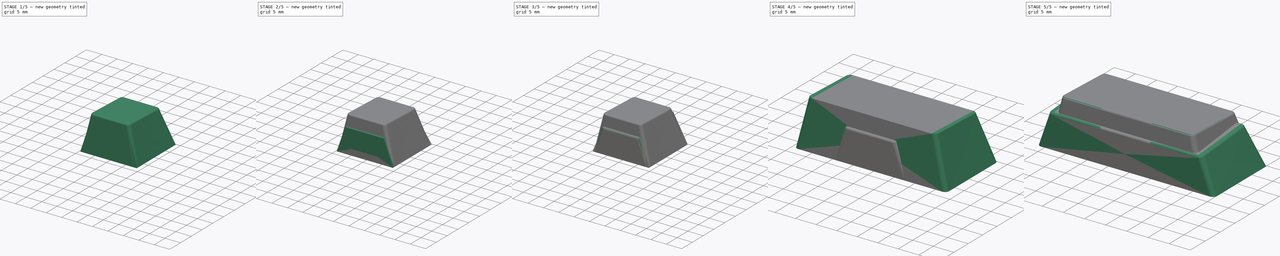
[diagram: build sequence overview — one tinted view per stage of 5, left to right]
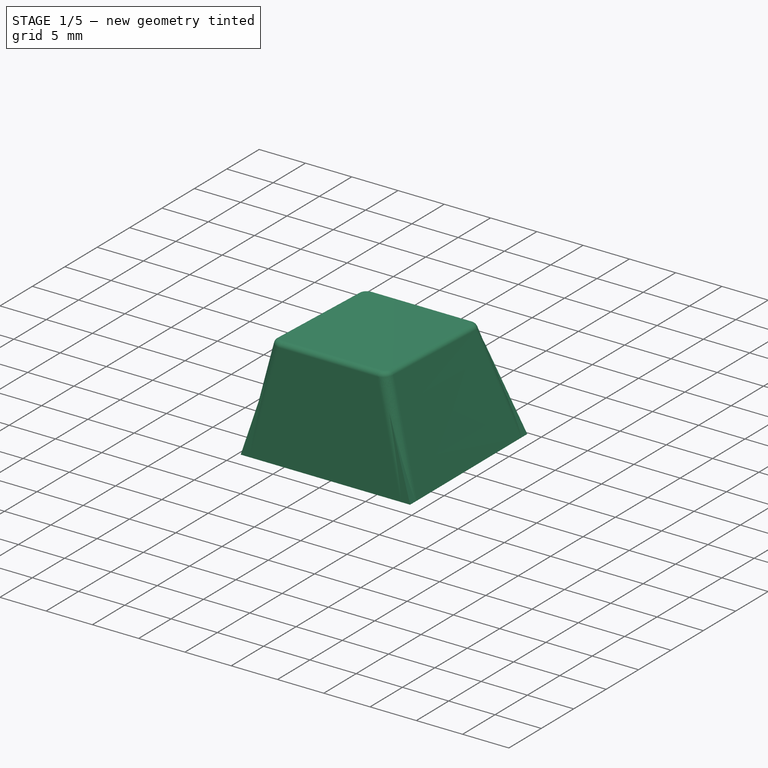
[diagram: stage 1 of 5 — iso view after this stage's code; geometry added in this stage tinted green]
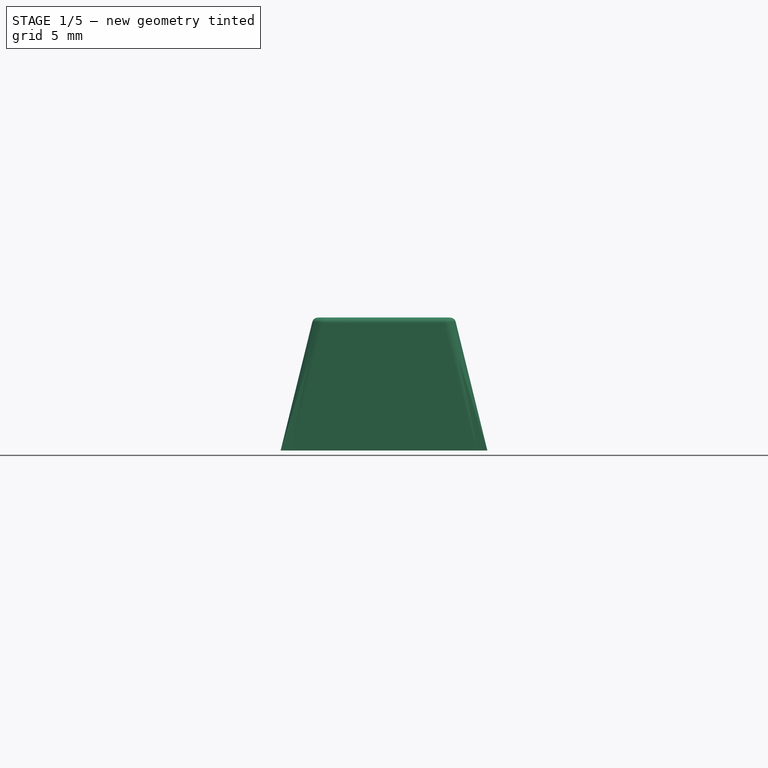
[diagram: stage 1 of 5 — front view after this stage's code; geometry added in this stage tinted green]
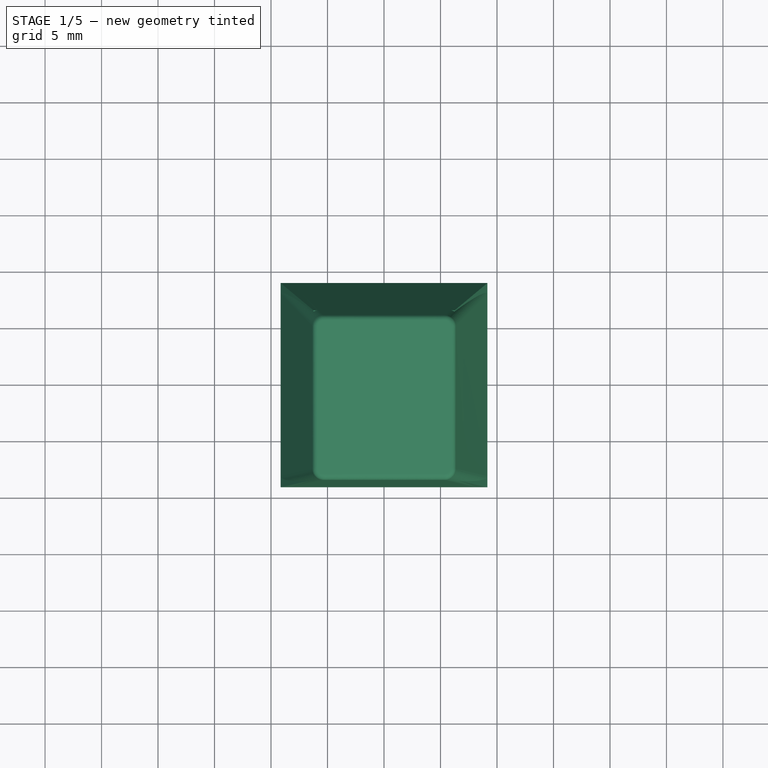
[diagram: stage 1 of 5 — top view after this stage's code; geometry added in this stage tinted green]
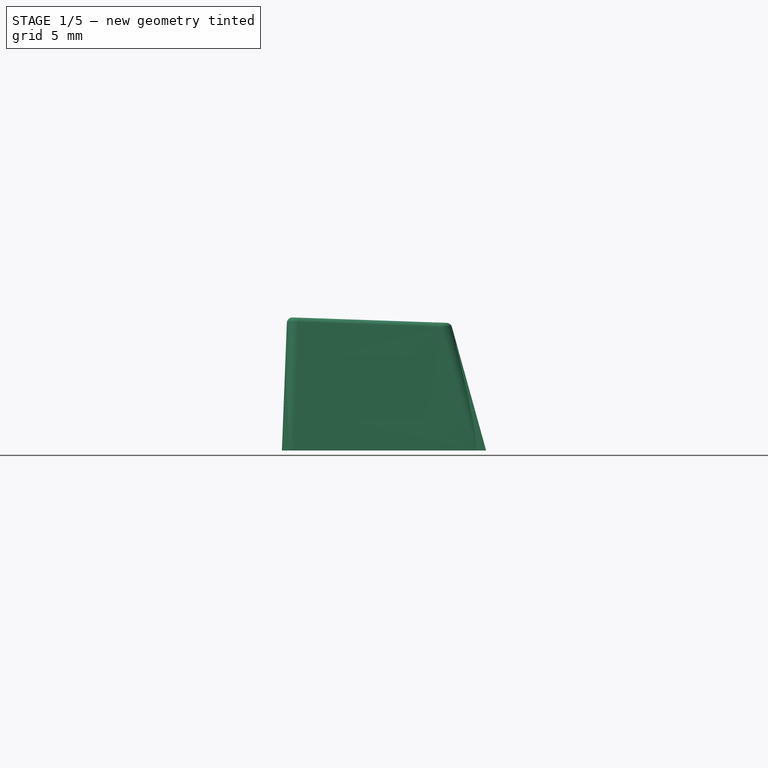
[diagram: stage 1 of 5 — right view after this stage's code; geometry added in this stage tinted green]
FCSTD DOCUMENT  (FreeCAD 0.21R33694 (Git))
Label: keycap
License: All rights reserved
LicenseURL: http://en.wikipedia.org/wiki/All_rights_reserved
objects: Sketcher::SketchObject×30, PartDesign::Fillet×16, PartDesign::Plane×12, PartDesign::AdditiveLoft×6, PartDesign::SubtractiveLoft×6, PartDesign::Pad×6, PartDesign::Chamfer×6, PartDesign::Body×6
note: 128 computed .brp shape members not serialized (recipe doc carries the construction recipe); baked Part::Feature solids carry a one-line shape summary decoded from their .brp

FEATURE [PartDesign::Body] Body003  label="1UR2"
  Group = -> [Sketch015,DatumPlane006,Sketch016,AdditiveLoft003,Sketch017,DatumPlane007,Sketch018,SubtractiveLoft003,Sketch019,Pad003,Fillet007,Fillet008,Chamfer003,Fillet009]
  Origin = -> Origin003
  Tip = -> Fillet009
FEATURE [Sketcher::SketchObject] Sketch020  label="OuterBottomPlane004"
  FullyConstrained = true
  MapMode = 5
  Support = -> [XY_Plane004]
  sketch-geometry (4):
    g0: LineSegment StartX=-9.15 StartY=9.04 StartZ=0 EndX=9.15 EndY=9.04 EndZ=0
    g1: LineSegment StartX=9.15 StartY=9.04 StartZ=0 EndX=9.15 EndY=-9.04 EndZ=0
    g2: LineSegment StartX=9.15 StartY=-9.04 StartZ=0 EndX=-9.15 EndY=-9.04 EndZ=0
    g3: LineSegment StartX=-9.15 StartY=-9.04 StartZ=0 EndX=-9.15 EndY=9.04 EndZ=0
  constraints (10):
    c: Coincident(g0,g1)
    c: Coincident(g1,g2)
    c: Coincident(g2,g3)
    c: Coincident(g3,g0)
    c: Horizontal(g2)
    c: Vertical(g1)
    c: Symmetric(g0,g2,g-1)
    c: Symmetric(g0,g0,g-2)
    c: DistanceY(g1,g1) = 18.08
    c: DistanceX(g0,g0) = 18.3
FEATURE [PartDesign::Plane] DatumPlane008  label="Floor Plane004"
  AttachmentOffset = pos=(0,0,9.3) rot=(0,0,1;0rad)
  Length = 60
  MapMode = 2
  Placement = pos=(0,0,9.3) rot=(0,0,1;0rad)
  ResizeMode = 0
  Support = -> [Sketch020]
  Width = 60
FEATURE [PartDesign::Plane] DatumPlane009
  AttachmentOffset = pos=(0,0,-7) rot=(0,0,1;0rad)
  Length = 60
  MapMode = 13
  Placement = pos=(-3.05,-3.01333,7) rot=(0,1,0;3.14159rad)
  ResizeMode = 0
  Support = -> [Sketch020]
  Width = 60
FEATURE [Sketcher::SketchObject] Sketch021  label="OuterTopPlane004"
  ExternalGeometry = -> [Sketch020]
  FullyConstrained = true
  MapMode = 5
  Placement = pos=(0,0,9.3) rot=(0,0,1;0rad)
  Support = -> [DatumPlane008]
  sketch-geometry (4):
    g0: LineSegment StartX=-6.25 StartY=-8.54 StartZ=0 EndX=6.25 EndY=-8.54 EndZ=0
    g1: LineSegment StartX=6.25 StartY=-8.54 StartZ=0 EndX=6.25 EndY=6.46 EndZ=0
    g2: LineSegment StartX=6.25 StartY=6.46 StartZ=0 EndX=-6.25 EndY=6.46 EndZ=0
    g3: LineSegment StartX=-6.25 StartY=6.46 StartZ=0 EndX=-6.25 EndY=-8.54 EndZ=0
  constraints (12):
    c: Coincident(g0,g1)
    c: Coincident(g1,g2)
    c: Coincident(g2,g3)
    c: Coincident(g3,g0)
    c: Horizontal(g2)
    c: Vertical(g1)
    c: Vertical(g3)
    c: DistanceY(g3,g3) = 15
    c: DistanceY(g-4,g0) = 0.5
    c: Horizontal(g0)
    c: DistanceX(g-4,g0) = 2.9
    c: DistanceX(g0,g-4) = 2.9
FEATURE [PartDesign::AdditiveLoft] AdditiveLoft004
  Closed = false
  Placement = pos=(0,0,9.3) rot=(0,0,1;0rad)
  Profile = -> Sketch021
  Ruled = false
  Sections = -> [Sketch020]
FEATURE [PartDesign::Body] Body004  label="1UR3"
  Group = -> [Sketch020,DatumPlane008,Sketch021,AdditiveLoft004,Sketch022,DatumPlane009,Sketch023,SubtractiveLoft004,Sketch024,Pad004,Fillet010,Fillet011,Chamfer004,Fillet012]
  Origin = -> Origin004
  Tip = -> Fillet012
FEATURE [Sketcher::SketchObject] Sketch025  label="OuterBottomPlane005"
  FullyConstrained = true
  MapMode = 5
  Support = -> [XY_Plane005]
  sketch-geometry (4):
    g0: LineSegment StartX=-9.15 StartY=9.04 StartZ=0 EndX=9.15 EndY=9.04 EndZ=0
    g1: LineSegment StartX=9.15 StartY=9.04 StartZ=0 EndX=9.15 EndY=-9.04 EndZ=0
    g2: LineSegment StartX=9.15 StartY=-9.04 StartZ=0 EndX=-9.15 EndY=-9.04 EndZ=0
    g3: LineSegment StartX=-9.15 StartY=-9.04 StartZ=0 EndX=-9.15 EndY=9.04 EndZ=0
  constraints (10):
    c: Coincident(g0,g1)
    c: Coincident(g1,g2)
    c: Coincident(g2,g3)
    c: Coincident(g3,g0)
    c: Horizontal(g2)
    c: Vertical(g1)
    c: Symmetric(g0,g2,g-1)
    c: Symmetric(g0,g0,g-2)
    c: DistanceY(g1,g1) = 18.08
    c: DistanceX(g0,g0) = 18.3
FEATURE [PartDesign::Plane] DatumPlane010  label="Floor Plane005"
  AttachmentOffset = pos=(0,0,11.5) rot=(-1,0,0;0.034907rad)
  Length = 60.17
  MapMode = 2
  Placement = pos=(0,0,11.5) rot=(-1,0,0;0.034907rad)
  ResizeMode = 0
  Support = -> [Sketch025]
  Width = 61.8845
FEATURE [PartDesign::Plane] DatumPlane011
  AttachmentOffset = pos=(0,0,-7) rot=(0,0,1;0rad)
  Length = 60
  MapMode = 13
  Placement = pos=(-3.05,-3.01333,7) rot=(0,1,0;3.14159rad)
  ResizeMode = 0
  Support = -> [Sketch025]
  Width = 60
FEATURE [Sketcher::SketchObject] Sketch026  label="OuterTopPlane005"
  ExternalGeometry = -> [Sketch025]
  FullyConstrained = true
  MapMode = 5
  Placement = pos=(0,0,11.5) rot=(-1,0,0;0.034907rad)
  Support = -> [DatumPlane010]
  sketch-geometry (4):
    g0: LineSegment StartX=-6.25 StartY=-8.58315 StartZ=0 EndX=6.25 EndY=-8.58315 EndZ=0
    g1: LineSegment StartX=6.25 StartY=-8.58315 StartZ=0 EndX=6.25 EndY=5.91685 EndZ=0
    g2: LineSegment StartX=6.25 StartY=5.91685 StartZ=0 EndX=-6.25 EndY=5.91685 EndZ=0
    g3: LineSegment StartX=-6.25 StartY=5.91685 StartZ=0 EndX=-6.25 EndY=-8.58315 EndZ=0
  constraints (12):
    c: Coincident(g0,g1)
    c: Coincident(g1,g2)
    c: Coincident(g2,g3)
    c: Coincident(g3,g0)
    c: Horizontal(g2)
    c: Vertical(g1)
    c: Vertical(g3)
    c: DistanceY(g3,g3) = 14.5
    c: DistanceY(g-4,g0) = 0.05
    c: Horizontal(g0)
    c: DistanceX(g-4,g0) = 2.9
    c: DistanceX(g0,g-4) = 2.9
FEATURE [PartDesign::AdditiveLoft] AdditiveLoft005
  Closed = false
  Placement = pos=(0,0,11.5) rot=(-1,0,0;0.034907rad)
  Profile = -> Sketch026
  Ruled = false
  Sections = -> [Sketch025]
FEATURE [Sketcher::SketchObject] Sketch027  label="InnerBottomPlane005"
  ExternalGeometry = -> [Sketch025]
  FullyConstrained = true
  MapMode = 5
  Placement = pos=(0,-4e-14,-1.8e-15) rot=(1,0,0;3.14159rad)
  Support = -> [AdditiveLoft005]
  sketch-geometry (4):
    g0: LineSegment StartX=-7.95 StartY=7.84 StartZ=0 EndX=7.95 EndY=7.84 EndZ=0
    g1: LineSegment StartX=7.95 StartY=7.84 StartZ=0 EndX=7.95 EndY=-8.04 EndZ=0
    g2: LineSegment StartX=7.95 StartY=-8.04 StartZ=0 EndX=-7.95 EndY=-8.04 EndZ=0
    g3: LineSegment StartX=-7.95 StartY=-8.04 StartZ=0 EndX=-7.95 EndY=7.84 EndZ=0
  constraints (12):
    c: Coincident(g0,g1)
    c: Coincident(g1,g2)
    c: Coincident(g2,g3)
    c: Coincident(g3,g0)
    c: Horizontal(g0)
    c: Horizontal(g2)
    c: Vertical(g1)
    c: Vertical(g3)
    c: DistanceX(g-3,g0) = 1.2
    c: DistanceY(g0,g-3) = 1.2
    c: DistanceX(g1,g-4) = 1.2
    c: DistanceY(g-4,g1) = 1
FEATURE [Sketcher::SketchObject] Sketch028  label="InnerTopPlane005"
  ExternalGeometry = -> [Sketch026]
  FullyConstrained = true
  MapMode = 5
  Placement = pos=(-3.05,-3.01333,7) rot=(0,1,0;3.14159rad)
  Support = -> [DatumPlane011]
  sketch-geometry (4):
    g0: LineSegment StartX=2.4 StartY=7.92658 StartZ=0 EndX=-8.5 EndY=7.92658 EndZ=0
    g1: LineSegment StartX=-8.5 StartY=7.92658 StartZ=0 EndX=-8.5 EndY=-4.36459 EndZ=0
    g2: LineSegment StartX=-8.5 StartY=-4.36459 StartZ=0 EndX=2.4 EndY=-4.36459 EndZ=0
    g3: LineSegment StartX=2.4 StartY=-4.36459 StartZ=0 EndX=2.4 EndY=7.92658 EndZ=0
  constraints (12):
    c: Coincident(g0,g1)
    c: Coincident(g1,g2)
    c: Coincident(g2,g3)
    c: Coincident(g3,g0)
    c: Horizontal(g0)
    c: Horizontal(g2)
    c: Vertical(g1)
    c: Vertical(g3)
    c: DistanceY(g-3,g1) = 1.2
    c: DistanceY(g0,g-4) = 1
    c: DistanceX(g0,g-4) = 0.8
    c: DistanceX(g-3,g1) = 0.8
FEATURE [PartDesign::SubtractiveLoft] SubtractiveLoft005
  BaseFeature = -> AdditiveLoft005
  Closed = false
  Placement = pos=(0,0,11.5) rot=(-1,0,0;0.034907rad)
  Profile = -> Sketch027
  Ruled = false
  Sections = -> [Sketch028]
FEATURE [Sketcher::SketchObject] Sketch029
  FullyConstrained = true
  MapMode = 5
  Placement = pos=(0,-1.59e-14,7) rot=(1,0,0;3.14159rad)
  Support = -> [SubtractiveLoft005]
  sketch-geometry (13):
    g0: Circle CenterX=0 CenterY=0 CenterZ=0 NormalX=0 NormalY=0 NormalZ=1 AngleXU=0 Radius=2.85
    g1: LineSegment StartX=-0.625 StartY=-0.625 StartZ=0 EndX=-0.625 EndY=-2.025 EndZ=0
    g2: LineSegment StartX=-0.625 StartY=-2.025 StartZ=0 EndX=0.625 EndY=-2.025 EndZ=0
    g3: LineSegment StartX=-0.625 StartY=-0.625 StartZ=0 EndX=-2.025 EndY=-0.625 EndZ=0
    g4: LineSegment StartX=-2.025 StartY=-0.625 StartZ=0 EndX=-2.025 EndY=0.625 EndZ=0
    g5: LineSegment StartX=-2.025 StartY=0.625 StartZ=0 EndX=-0.625 EndY=0.625 EndZ=0
    g6: LineSegment StartX=-0.625 StartY=0.625 StartZ=0 EndX=-0.625 EndY=2.025 EndZ=0
    g7: LineSegment StartX=-0.625 StartY=2.025 StartZ=0 EndX=0.625 EndY=2.025 EndZ=0
    g8: LineSegment StartX=0.625 StartY=2.025 StartZ=0 EndX=0.625 EndY=0.625 EndZ=0
    g9: LineSegment StartX=0.625 StartY=0.625 StartZ=0 EndX=2.025 EndY=0.625 EndZ=0
    g10: LineSegment StartX=2.025 StartY=0.625 StartZ=0 EndX=2.025 EndY=-0.625 EndZ=0
    g11: LineSegment StartX=2.025 StartY=-0.625 StartZ=0 EndX=0.625 EndY=-0.625 EndZ=0
    g12: LineSegment StartX=0.625 StartY=-0.625 StartZ=0 EndX=0.625 EndY=-2.025 EndZ=0
  constraints (38):
    c: Vertical(g1)
    c: Coincident(g2,g1)
    c: Horizontal(g2)
    c: Coincident(g3,g1)
    c: Horizontal(g3)
    c: Coincident(g4,g3)
    c: Vertical(g4)
    c: Coincident(g5,g4)
    c: Horizontal(g5)
    c: Coincident(g6,g5)
    c: Vertical(g6)
    c: Coincident(g7,g6)
    c: Horizontal(g7)
    c: Coincident(g8,g7)
    c: Vertical(g8)
    c: Coincident(g9,g8)
    c: Horizontal(g9)
    c: Coincident(g10,g9)
    c: Vertical(g10)
    c: Coincident(g11,g10)
    c: Horizontal(g11)
    c: Coincident(g12,g11)
    c: Coincident(g12,g2)
    c: Vertical(g12)
    c: Horizontal(g5,g8)
    c: Horizontal(g11,g1)
    c: Vertical(g5,g1)
    c: Vertical(g8,g11)
    c: Equal(g7,g4)
    c: Equal(g1,g6)
    c: Equal(g6,g11)
    c: Equal(g3,g11)
    c: DistanceY(g1,g6) = 4.05
    c: DistanceX(g5,g8) = 1.25
    c: DistanceX(g5,g0) = 0.625
    c: DistanceY(g0,g5) = 0.625
    c: Diameter(g0) = 5.7
    c: Coincident(g0,g-1)
FEATURE [PartDesign::Pad] Pad005
  BaseFeature = -> SubtractiveLoft005
  Direction = (0,-3.5e-15,-1)
  Length = 10
  Length2 = 10
  Offset = -1.2
  Placement = pos=(0,0,11.5) rot=(-1,0,0;0.034907rad)
  Profile = -> Sketch029
  ReferenceAxis = -> Sketch029 [N_Axis]
  Type = 3
  UpToFace = -> SubtractiveLoft005 [Face6]
FEATURE [PartDesign::Fillet] Fillet013
  Base = -> Pad005 [Edge5,Edge8,Edge7,Edge10]
  BaseFeature = -> Pad005
  Placement = pos=(0,0,11.5) rot=(-1,0,0;0.034907rad)
  Radius = 1
  SupportTransform = false
  UseAllEdges = false
FEATURE [PartDesign::Fillet] Fillet014
  Base = -> Fillet013 [Face1]
  BaseFeature = -> Fillet013
  Placement = pos=(0,0,11.5) rot=(-1,0,0;0.034907rad)
  Radius = 0.5
  SupportTransform = false
  UseAllEdges = false
FEATURE [PartDesign::Chamfer] Chamfer005
  Angle = 45
  Base = -> Fillet014 [Edge54]
  BaseFeature = -> Fillet014
  ChamferType = 0
  FlipDirection = false
  Placement = pos=(0,0,11.5) rot=(-1,0,0;0.034907rad)
  Size = 1
  Size2 = 1
  SupportTransform = false
  UseAllEdges = false
FEATURE [PartDesign::Fillet] Fillet015
  Base = -> Chamfer005 [Edge53]
  BaseFeature = -> Chamfer005
  Placement = pos=(0,0,11.5) rot=(-1,0,0;0.034907rad)
  Radius = 1
  SupportTransform = false
  UseAllEdges = false
FEATURE [PartDesign::Body] Body005  label="1UR4"
  Group = -> [Sketch025,DatumPlane010,Sketch026,AdditiveLoft005,Sketch027,DatumPlane011,Sketch028,SubtractiveLoft005,Sketch029,Pad005,Fillet013,Fillet014,Chamfer005,Fillet015]
  Origin = -> Origin005
  Tip = -> Fillet015
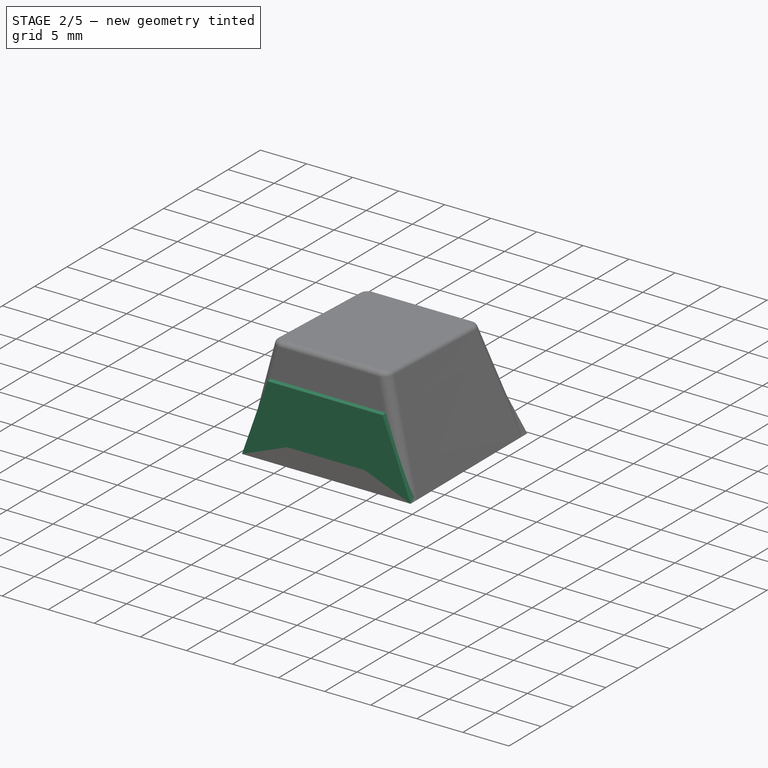
[diagram: stage 2 of 5 — iso view after this stage's code; geometry added in this stage tinted green]
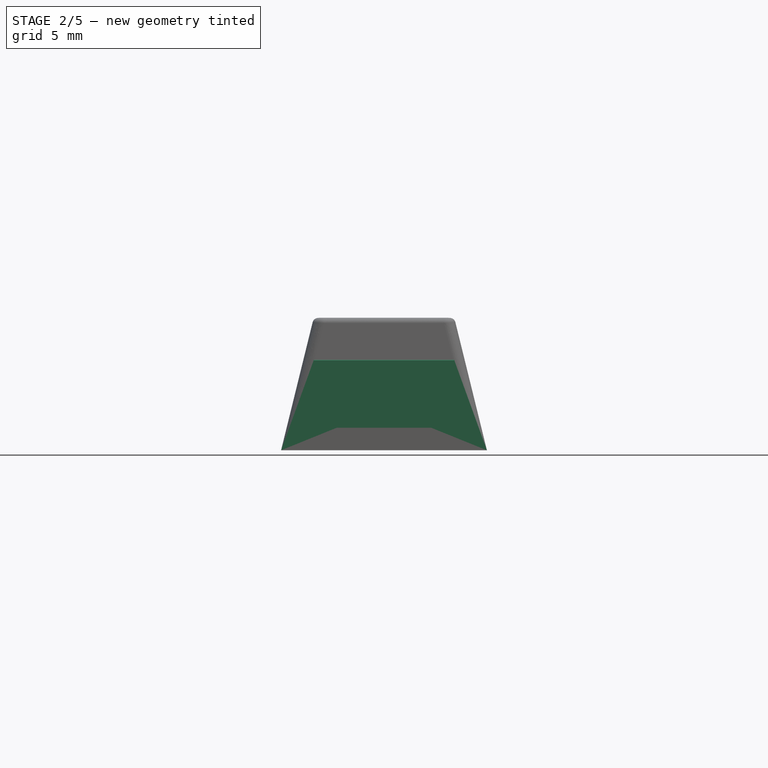
[diagram: stage 2 of 5 — front view after this stage's code; geometry added in this stage tinted green]
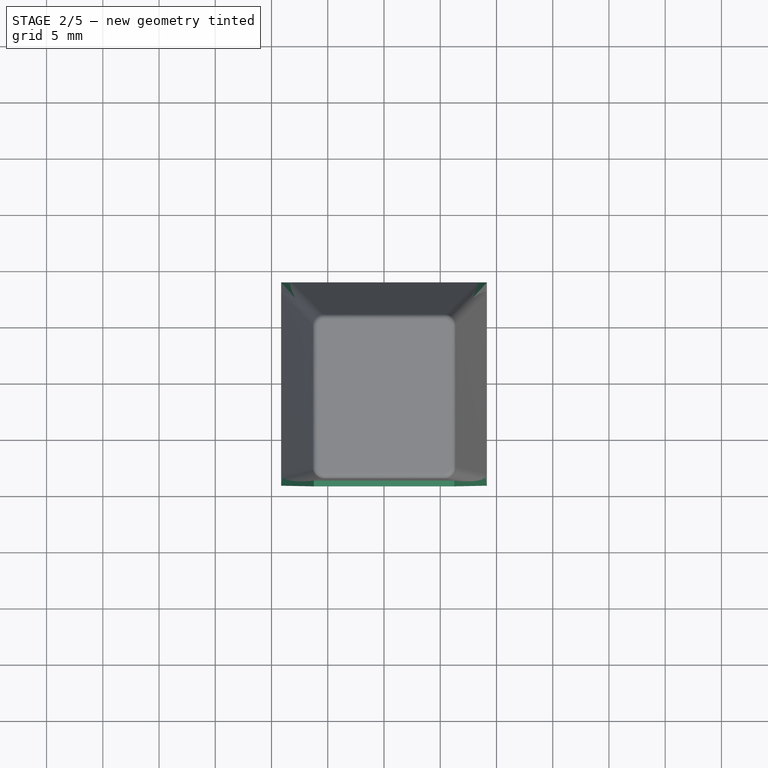
[diagram: stage 2 of 5 — top view after this stage's code; geometry added in this stage tinted green]
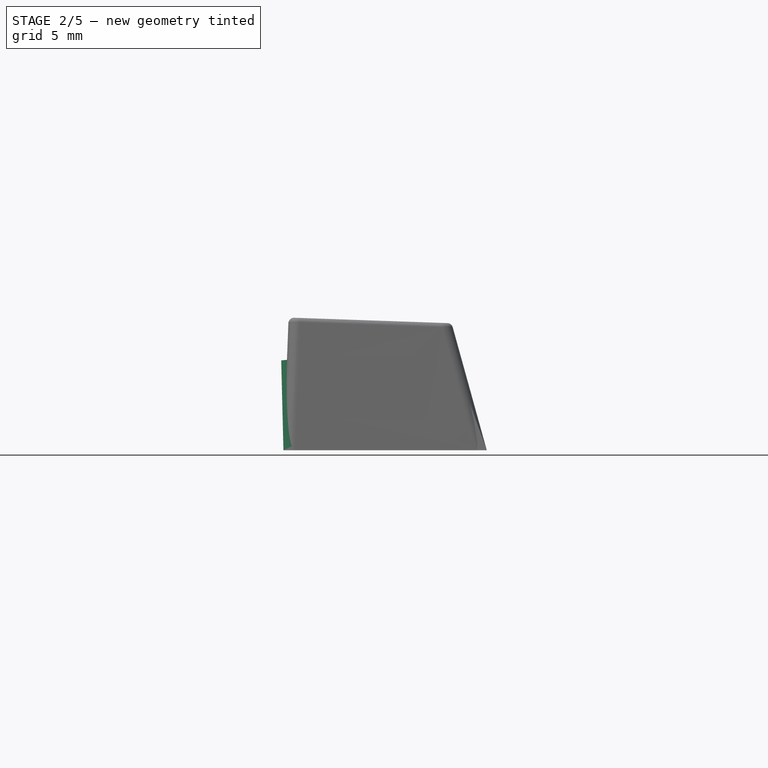
[diagram: stage 2 of 5 — right view after this stage's code; geometry added in this stage tinted green]
FEATURE [PartDesign::Body] Body002  label="1UR1"
  Group = -> [Sketch010,DatumPlane004,Sketch011,AdditiveLoft002,Sketch012,DatumPlane005,Sketch013,SubtractiveLoft002,Sketch014,Pad002,Fillet004,Fillet005,Chamfer002,Fillet006]
  Origin = -> Origin002
  Tip = -> Fillet006
FEATURE [Sketcher::SketchObject] Sketch015  label="OuterBottomPlane003"
  FullyConstrained = true
  MapMode = 5
  Support = -> [XY_Plane003]
  sketch-geometry (4):
    g0: LineSegment StartX=-9.15 StartY=9.04 StartZ=0 EndX=9.15 EndY=9.04 EndZ=0
    g1: LineSegment StartX=9.15 StartY=9.04 StartZ=0 EndX=9.15 EndY=-9.04 EndZ=0
    g2: LineSegment StartX=9.15 StartY=-9.04 StartZ=0 EndX=-9.15 EndY=-9.04 EndZ=0
    g3: LineSegment StartX=-9.15 StartY=-9.04 StartZ=0 EndX=-9.15 EndY=9.04 EndZ=0
  constraints (10):
    c: Coincident(g0,g1)
    c: Coincident(g1,g2)
    c: Coincident(g2,g3)
    c: Coincident(g3,g0)
    c: Horizontal(g2)
    c: Vertical(g1)
    c: Symmetric(g0,g2,g-1)
    c: Symmetric(g0,g0,g-2)
    c: DistanceY(g1,g1) = 18.08
    c: DistanceX(g0,g0) = 18.3
FEATURE [PartDesign::Plane] DatumPlane006  label="Floor Plane003"
  AttachmentOffset = pos=(0,0,8.8) rot=(1,0,0;0.087266rad)
  Length = 60.4084
  MapMode = 2
  Placement = pos=(0,0,8.8) rot=(1,0,0;0.087266rad)
  ResizeMode = 0
  Support = -> [Sketch015]
  Width = 64.5759
FEATURE [PartDesign::Plane] DatumPlane007
  AttachmentOffset = pos=(0,0,-7) rot=(0,0,1;0rad)
  Length = 60
  MapMode = 13
  Placement = pos=(-3.05,-3.01333,7) rot=(0,1,0;3.14159rad)
  ResizeMode = 0
  Support = -> [Sketch015]
  Width = 60
FEATURE [Sketcher::SketchObject] Sketch016  label="OuterTopPlane003"
  ExternalGeometry = -> [Sketch015]
  FullyConstrained = true
  MapMode = 5
  Placement = pos=(0,0,8.8) rot=(1,0,0;0.087266rad)
  Support = -> [DatumPlane006]
  sketch-geometry (4):
    g0: LineSegment StartX=-6.25 StartY=-9.27257 StartZ=0 EndX=6.25 EndY=-9.27257 EndZ=0
    g1: LineSegment StartX=6.25 StartY=-9.27257 StartZ=0 EndX=6.25 EndY=5.72743 EndZ=0
    g2: LineSegment StartX=6.25 StartY=5.72743 StartZ=0 EndX=-6.25 EndY=5.72743 EndZ=0
    g3: LineSegment StartX=-6.25 StartY=5.72743 StartZ=0 EndX=-6.25 EndY=-9.27257 EndZ=0
  constraints (12):
    c: Coincident(g0,g1)
    c: Coincident(g1,g2)
    c: Coincident(g2,g3)
    c: Coincident(g3,g0)
    c: Horizontal(g2)
    c: Vertical(g1)
    c: Vertical(g3)
    c: DistanceY(g3,g3) = 15
    c: DistanceY(g-4,g0) = 0.5
    c: Horizontal(g0)
    c: DistanceX(g-4,g0) = 2.9
    c: DistanceX(g0,g-4) = 2.9
FEATURE [PartDesign::AdditiveLoft] AdditiveLoft003
  Closed = false
  Placement = pos=(0,0,8.8) rot=(1,0,0;0.087266rad)
  Profile = -> Sketch016
  Ruled = false
  Sections = -> [Sketch015]
FEATURE [Sketcher::SketchObject] Sketch017  label="InnerBottomPlane003"
  ExternalGeometry = -> [Sketch015]
  FullyConstrained = true
  MapMode = 5
  Placement = pos=(0,1.2e-14,1.8e-15) rot=(1,0,0;3.14159rad)
  Support = -> [AdditiveLoft003]
  sketch-geometry (4):
    g0: LineSegment StartX=-7.95 StartY=7.84 StartZ=0 EndX=7.95 EndY=7.84 EndZ=0
    g1: LineSegment StartX=7.95 StartY=7.84 StartZ=0 EndX=7.95 EndY=-8.04 EndZ=0
    g2: LineSegment StartX=7.95 StartY=-8.04 StartZ=0 EndX=-7.95 EndY=-8.04 EndZ=0
    g3: LineSegment StartX=-7.95 StartY=-8.04 StartZ=0 EndX=-7.95 EndY=7.84 EndZ=0
  constraints (12):
    c: Coincident(g0,g1)
    c: Coincident(g1,g2)
    c: Coincident(g2,g3)
    c: Coincident(g3,g0)
    c: Horizontal(g0)
    c: Horizontal(g2)
    c: Vertical(g1)
    c: Vertical(g3)
    c: DistanceX(g-3,g0) = 1.2
    c: DistanceY(g0,g-3) = 1.2
    c: DistanceX(g1,g-4) = 1.2
    c: DistanceY(g-4,g1) = 1
FEATURE [Sketcher::SketchObject] Sketch018  label="InnerTopPlane003"
  ExternalGeometry = -> [Sketch016]
  FullyConstrained = true
  MapMode = 5
  Placement = pos=(-3.05,-3.01333,7) rot=(0,1,0;3.14159rad)
  Support = -> [DatumPlane007]
  sketch-geometry (4):
    g0: LineSegment StartX=2.4 StartY=7.71897 StartZ=0 EndX=-8.5 EndY=7.71897 EndZ=0
    g1: LineSegment StartX=-8.5 StartY=7.71897 StartZ=0 EndX=-8.5 EndY=-5.02395 EndZ=0
    g2: LineSegment StartX=-8.5 StartY=-5.02395 StartZ=0 EndX=2.4 EndY=-5.02395 EndZ=0
    g3: LineSegment StartX=2.4 StartY=-5.02395 StartZ=0 EndX=2.4 EndY=7.71897 EndZ=0
  constraints (12):
    c: Coincident(g0,g1)
    c: Coincident(g1,g2)
    c: Coincident(g2,g3)
    c: Coincident(g3,g0)
    c: Horizontal(g0)
    c: Horizontal(g2)
    c: Vertical(g1)
    c: Vertical(g3)
    c: DistanceY(g-3,g1) = 1.2
    c: DistanceY(g0,g-4) = 1
    c: DistanceX(g0,g-4) = 0.8
    c: DistanceX(g-3,g1) = 0.8
FEATURE [PartDesign::SubtractiveLoft] SubtractiveLoft003
  BaseFeature = -> AdditiveLoft003
  Closed = false
  Placement = pos=(0,0,8.8) rot=(1,0,0;0.087266rad)
  Profile = -> Sketch017
  Ruled = false
  Sections = -> [Sketch018]
FEATURE [Sketcher::SketchObject] Sketch022  label="InnerBottomPlane004"
  ExternalGeometry = -> [Sketch020]
  FullyConstrained = true
  MapMode = 5
  Placement = pos=(0,0,0) rot=(1,0,0;3.14159rad)
  Support = -> [AdditiveLoft004]
  sketch-geometry (4):
    g0: LineSegment StartX=-7.95 StartY=7.84 StartZ=0 EndX=7.95 EndY=7.84 EndZ=0
    g1: LineSegment StartX=7.95 StartY=7.84 StartZ=0 EndX=7.95 EndY=-8.04 EndZ=0
    g2: LineSegment StartX=7.95 StartY=-8.04 StartZ=0 EndX=-7.95 EndY=-8.04 EndZ=0
    g3: LineSegment StartX=-7.95 StartY=-8.04 StartZ=0 EndX=-7.95 EndY=7.84 EndZ=0
  constraints (12):
    c: Coincident(g0,g1)
    c: Coincident(g1,g2)
    c: Coincident(g2,g3)
    c: Coincident(g3,g0)
    c: Horizontal(g0)
    c: Horizontal(g2)
    c: Vertical(g1)
    c: Vertical(g3)
    c: DistanceX(g-3,g0) = 1.2
    c: DistanceY(g0,g-3) = 1.2
    c: DistanceX(g1,g-4) = 1.2
    c: DistanceY(g-4,g1) = 1
FEATURE [Sketcher::SketchObject] Sketch023  label="InnerTopPlane004"
  ExternalGeometry = -> [Sketch021]
  FullyConstrained = true
  MapMode = 5
  Placement = pos=(-3.05,-3.01333,7) rot=(0,1,0;3.14159rad)
  Support = -> [DatumPlane009]
  sketch-geometry (4):
    g0: LineSegment StartX=2.4 StartY=8.47333 StartZ=0 EndX=-8.5 EndY=8.47333 EndZ=0
    g1: LineSegment StartX=-8.5 StartY=8.47333 StartZ=0 EndX=-8.5 EndY=-4.32667 EndZ=0
    g2: LineSegment StartX=-8.5 StartY=-4.32667 StartZ=0 EndX=2.4 EndY=-4.32667 EndZ=0
    g3: LineSegment StartX=2.4 StartY=-4.32667 StartZ=0 EndX=2.4 EndY=8.47333 EndZ=0
  constraints (12):
    c: Coincident(g0,g1)
    c: Coincident(g1,g2)
    c: Coincident(g2,g3)
    c: Coincident(g3,g0)
    c: Horizontal(g0)
    c: Horizontal(g2)
    c: Vertical(g1)
    c: Vertical(g3)
    c: DistanceY(g-3,g1) = 1.2
    c: DistanceY(g0,g-4) = 1
    c: DistanceX(g0,g-4) = 0.8
    c: DistanceX(g-3,g1) = 0.8
FEATURE [PartDesign::SubtractiveLoft] SubtractiveLoft004
  BaseFeature = -> AdditiveLoft004
  Closed = false
  Placement = pos=(0,0,9.3) rot=(0,0,1;0rad)
  Profile = -> Sketch022
  Ruled = false
  Sections = -> [Sketch023]
FEATURE [Sketcher::SketchObject] Sketch024
  FullyConstrained = true
  MapMode = 5
  Placement = pos=(0,0,7) rot=(1,0,0;3.14159rad)
  Support = -> [SubtractiveLoft004]
  sketch-geometry (13):
    g0: Circle CenterX=0 CenterY=0 CenterZ=0 NormalX=0 NormalY=0 NormalZ=1 AngleXU=0 Radius=2.85
    g1: LineSegment StartX=-0.625 StartY=-0.625 StartZ=0 EndX=-0.625 EndY=-2.025 EndZ=0
    g2: LineSegment StartX=-0.625 StartY=-2.025 StartZ=0 EndX=0.625 EndY=-2.025 EndZ=0
    g3: LineSegment StartX=-0.625 StartY=-0.625 StartZ=0 EndX=-2.025 EndY=-0.625 EndZ=0
    g4: LineSegment StartX=-2.025 StartY=-0.625 StartZ=0 EndX=-2.025 EndY=0.625 EndZ=0
    g5: LineSegment StartX=-2.025 StartY=0.625 StartZ=0 EndX=-0.625 EndY=0.625 EndZ=0
    g6: LineSegment StartX=-0.625 StartY=0.625 StartZ=0 EndX=-0.625 EndY=2.025 EndZ=0
    g7: LineSegment StartX=-0.625 StartY=2.025 StartZ=0 EndX=0.625 EndY=2.025 EndZ=0
    g8: LineSegment StartX=0.625 StartY=2.025 StartZ=0 EndX=0.625 EndY=0.625 EndZ=0
    g9: LineSegment StartX=0.625 StartY=0.625 StartZ=0 EndX=2.025 EndY=0.625 EndZ=0
    g10: LineSegment StartX=2.025 StartY=0.625 StartZ=0 EndX=2.025 EndY=-0.625 EndZ=0
    g11: LineSegment StartX=2.025 StartY=-0.625 StartZ=0 EndX=0.625 EndY=-0.625 EndZ=0
    g12: LineSegment StartX=0.625 StartY=-0.625 StartZ=0 EndX=0.625 EndY=-2.025 EndZ=0
  constraints (38):
    c: Vertical(g1)
    c: Coincident(g2,g1)
    c: Horizontal(g2)
    c: Coincident(g3,g1)
    c: Horizontal(g3)
    c: Coincident(g4,g3)
    c: Vertical(g4)
    c: Coincident(g5,g4)
    c: Horizontal(g5)
    c: Coincident(g6,g5)
    c: Vertical(g6)
    c: Coincident(g7,g6)
    c: Horizontal(g7)
    c: Coincident(g8,g7)
    c: Vertical(g8)
    c: Coincident(g9,g8)
    c: Horizontal(g9)
    c: Coincident(g10,g9)
    c: Vertical(g10)
    c: Coincident(g11,g10)
    c: Horizontal(g11)
    c: Coincident(g12,g11)
    c: Coincident(g12,g2)
    c: Vertical(g12)
    c: Horizontal(g5,g8)
    c: Horizontal(g11,g1)
    c: Vertical(g5,g1)
    c: Vertical(g8,g11)
    c: Equal(g7,g4)
    c: Equal(g1,g6)
    c: Equal(g6,g11)
    c: Equal(g3,g11)
    c: DistanceY(g1,g6) = 4.05
    c: DistanceX(g5,g8) = 1.25
    c: DistanceX(g5,g0) = 0.625
    c: DistanceY(g0,g5) = 0.625
    c: Diameter(g0) = 5.7
    c: Coincident(g0,g-1)
FEATURE [PartDesign::Pad] Pad004
  BaseFeature = -> SubtractiveLoft004
  Direction = (0,0,-1)
  Length = 10
  Length2 = 10
  Offset = -1.2
  Placement = pos=(0,0,9.3) rot=(0,0,1;0rad)
  Profile = -> Sketch024
  ReferenceAxis = -> Sketch024 [N_Axis]
  Type = 3
  UpToFace = -> SubtractiveLoft004 [Face6]
FEATURE [PartDesign::Fillet] Fillet010
  Base = -> Pad004 [Edge5,Edge8,Edge7,Edge10]
  BaseFeature = -> Pad004
  Placement = pos=(0,0,9.3) rot=(0,0,1;0rad)
  Radius = 1
  SupportTransform = false
  UseAllEdges = false
FEATURE [PartDesign::Fillet] Fillet011
  Base = -> Fillet010 [Face1]
  BaseFeature = -> Fillet010
  Placement = pos=(0,0,9.3) rot=(0,0,1;0rad)
  Radius = 0.5
  SupportTransform = false
  UseAllEdges = false
FEATURE [PartDesign::Chamfer] Chamfer004
  Angle = 45
  Base = -> Fillet011 [Edge54]
  BaseFeature = -> Fillet011
  ChamferType = 0
  FlipDirection = false
  Placement = pos=(0,0,9.3) rot=(0,0,1;0rad)
  Size = 1
  Size2 = 1
  SupportTransform = false
  UseAllEdges = false
FEATURE [PartDesign::Fillet] Fillet012
  Base = -> Chamfer004 [Edge53]
  BaseFeature = -> Chamfer004
  Placement = pos=(0,0,9.3) rot=(0,0,1;0rad)
  Radius = 1
  SupportTransform = false
  UseAllEdges = false
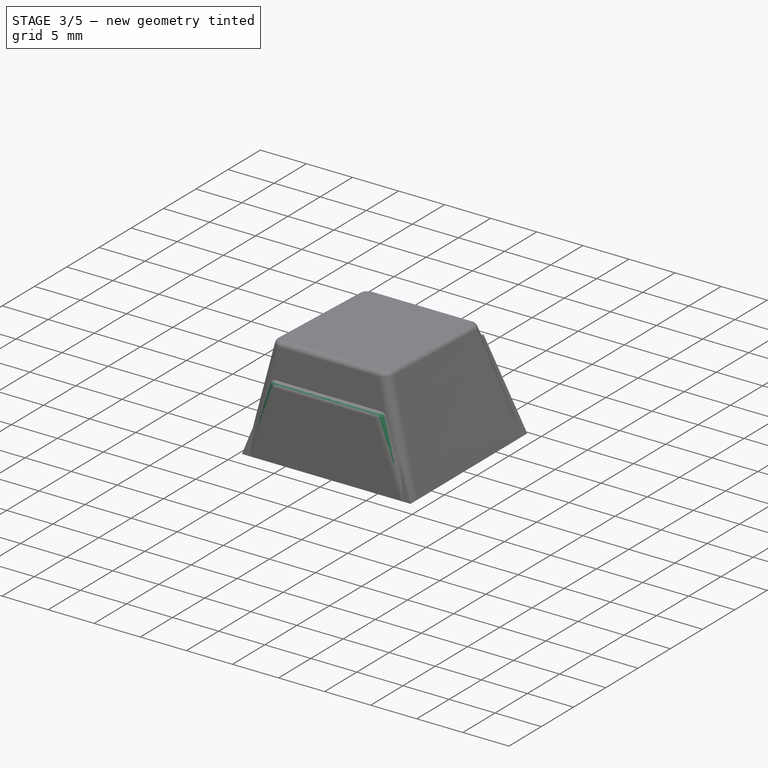
[diagram: stage 3 of 5 — iso view after this stage's code; geometry added in this stage tinted green]
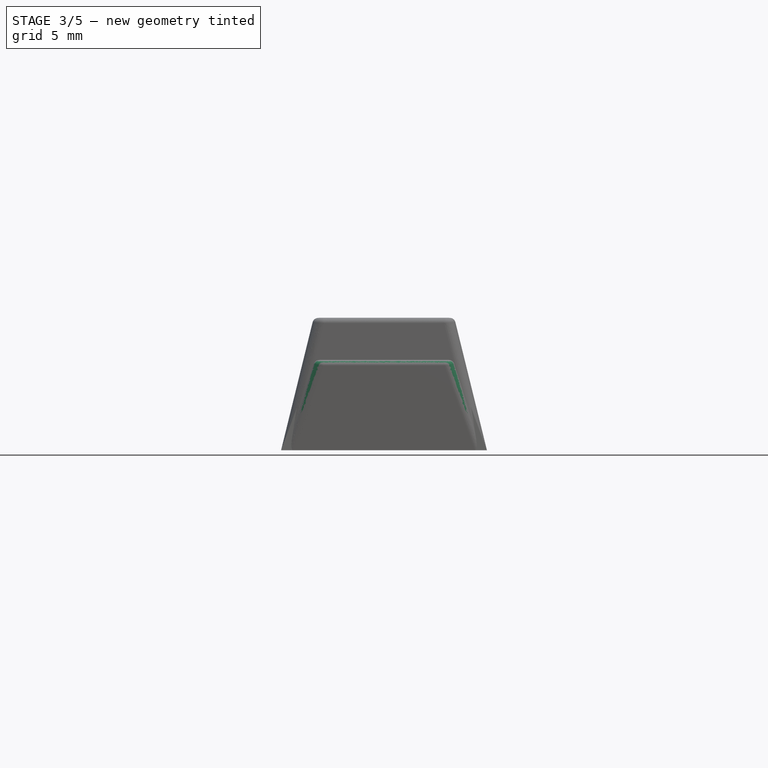
[diagram: stage 3 of 5 — front view after this stage's code; geometry added in this stage tinted green]
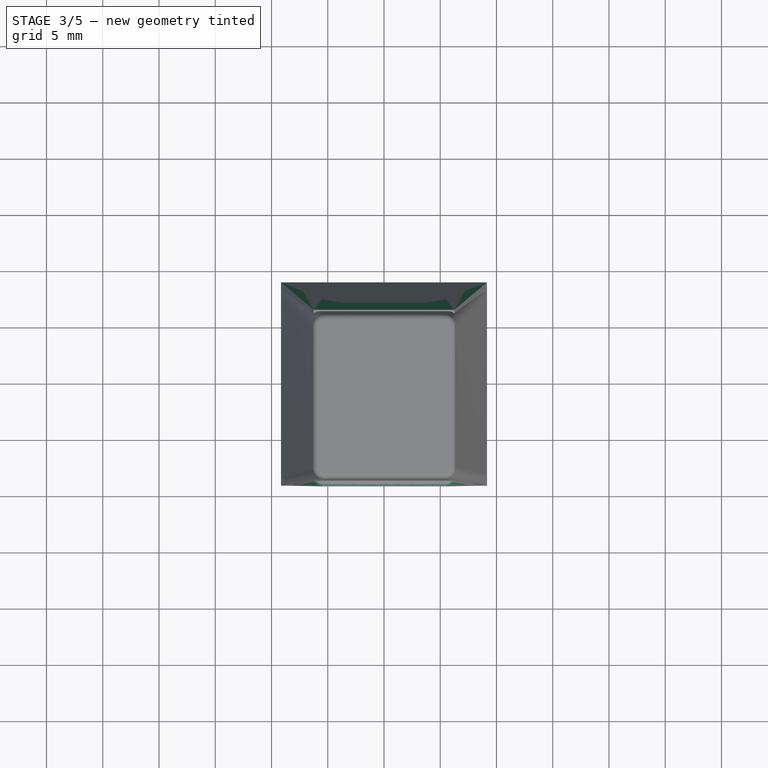
[diagram: stage 3 of 5 — top view after this stage's code; geometry added in this stage tinted green]
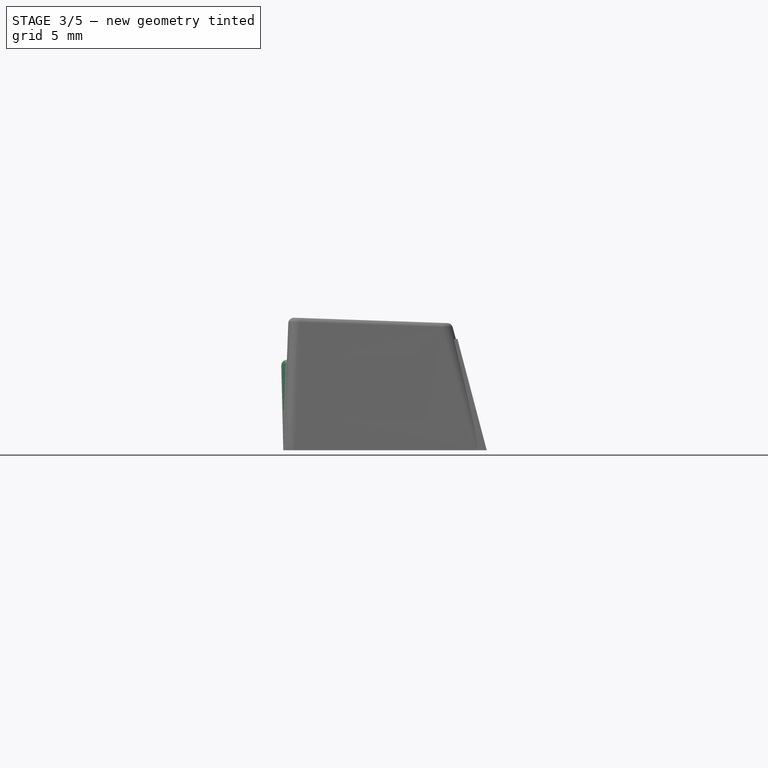
[diagram: stage 3 of 5 — right view after this stage's code; geometry added in this stage tinted green]
FEATURE [PartDesign::Body] Body001  label="2UR4"
  Group = -> [Sketch005,DatumPlane002,Sketch006,AdditiveLoft001,Sketch007,DatumPlane003,Sketch008,SubtractiveLoft001,Sketch009,Pad001,Fillet002,Fillet003,Chamfer001]
  Origin = -> Origin001
  Tip = -> Chamfer001
FEATURE [Sketcher::SketchObject] Sketch010  label="OuterBottomPlane002"
  FullyConstrained = true
  MapMode = 5
  Support = -> [XY_Plane002]
  sketch-geometry (4):
    g0: LineSegment StartX=-9.15 StartY=9.04 StartZ=0 EndX=9.15 EndY=9.04 EndZ=0
    g1: LineSegment StartX=9.15 StartY=9.04 StartZ=0 EndX=9.15 EndY=-9.04 EndZ=0
    g2: LineSegment StartX=9.15 StartY=-9.04 StartZ=0 EndX=-9.15 EndY=-9.04 EndZ=0
    g3: LineSegment StartX=-9.15 StartY=-9.04 StartZ=0 EndX=-9.15 EndY=9.04 EndZ=0
  constraints (10):
    c: Coincident(g0,g1)
    c: Coincident(g1,g2)
    c: Coincident(g2,g3)
    c: Coincident(g3,g0)
    c: Horizontal(g2)
    c: Vertical(g1)
    c: Symmetric(g0,g2,g-1)
    c: Symmetric(g0,g0,g-2)
    c: DistanceY(g1,g1) = 18.08
    c: DistanceX(g0,g0) = 18.3
FEATURE [PartDesign::Plane] DatumPlane004  label="Floor Plane002"
  AttachmentOffset = pos=(0,0,9) rot=(1,0,0;0.139626rad)
  Length = 60.6275
  MapMode = 2
  Placement = pos=(0,0,9) rot=(1,0,0;0.139626rad)
  ResizeMode = 0
  Support = -> [Sketch010]
  Width = 67.0996
FEATURE [PartDesign::Plane] DatumPlane005
  AttachmentOffset = pos=(0,0,-7) rot=(0,0,1;0rad)
  Length = 60
  MapMode = 13
  Placement = pos=(-3.05,-3.01333,7) rot=(0,1,0;3.14159rad)
  ResizeMode = 0
  Support = -> [Sketch010]
  Width = 60
FEATURE [Sketcher::SketchObject] Sketch011  label="OuterTopPlane002"
  ExternalGeometry = -> [Sketch010]
  FullyConstrained = true
  MapMode = 5
  Placement = pos=(0,-2e-16,9) rot=(1,0,0;0.139626rad)
  Support = -> [DatumPlane004]
  sketch-geometry (4):
    g0: LineSegment StartX=-6.25 StartY=-8.50458 StartZ=0 EndX=6.25 EndY=-8.50458 EndZ=0
    g1: LineSegment StartX=6.25 StartY=-8.50458 StartZ=0 EndX=6.25 EndY=6.49542 EndZ=0
    g2: LineSegment StartX=6.25 StartY=6.49542 StartZ=0 EndX=-6.25 EndY=6.49542 EndZ=0
    g3: LineSegment StartX=-6.25 StartY=6.49542 StartZ=0 EndX=-6.25 EndY=-8.50458 EndZ=0
  constraints (12):
    c: Coincident(g0,g1)
    c: Coincident(g1,g2)
    c: Coincident(g2,g3)
    c: Coincident(g3,g0)
    c: Horizontal(g2)
    c: Vertical(g1)
    c: Vertical(g3)
    c: DistanceY(g3,g3) = 15
    c: DistanceY(g-4,g0) = 1.7
    c: Horizontal(g0)
    c: DistanceX(g-4,g0) = 2.9
    c: DistanceX(g0,g-4) = 2.9
FEATURE [PartDesign::AdditiveLoft] AdditiveLoft002
  Closed = false
  Placement = pos=(0,0,9) rot=(1,0,0;0.139626rad)
  Profile = -> Sketch011
  Ruled = false
  Sections = -> [Sketch010]
FEATURE [Sketcher::SketchObject] Sketch012  label="InnerBottomPlane002"
  ExternalGeometry = -> [Sketch010]
  FullyConstrained = true
  MapMode = 5
  Placement = pos=(0,1.64e-14,-1.8e-15) rot=(1,0,0;3.14159rad)
  Support = -> [AdditiveLoft002]
  sketch-geometry (4):
    g0: LineSegment StartX=-7.95 StartY=7.84 StartZ=0 EndX=7.95 EndY=7.84 EndZ=0
    g1: LineSegment StartX=7.95 StartY=7.84 StartZ=0 EndX=7.95 EndY=-8.04 EndZ=0
    g2: LineSegment StartX=7.95 StartY=-8.04 StartZ=0 EndX=-7.95 EndY=-8.04 EndZ=0
    g3: LineSegment StartX=-7.95 StartY=-8.04 StartZ=0 EndX=-7.95 EndY=7.84 EndZ=0
  constraints (12):
    c: Coincident(g0,g1)
    c: Coincident(g1,g2)
    c: Coincident(g2,g3)
    c: Coincident(g3,g0)
    c: Horizontal(g0)
    c: Horizontal(g2)
    c: Vertical(g1)
    c: Vertical(g3)
    c: DistanceX(g-3,g0) = 1.2
    c: DistanceY(g0,g-3) = 1.2
    c: DistanceX(g1,g-4) = 1.2
    c: DistanceY(g-4,g1) = 1
FEATURE [Sketcher::SketchObject] Sketch013  label="InnerTopPlane002"
  ExternalGeometry = -> [Sketch011]
  FullyConstrained = true
  MapMode = 5
  Placement = pos=(-3.05,-3.01333,7) rot=(0,1,0;3.14159rad)
  Support = -> [DatumPlane005]
  sketch-geometry (4):
    g0: LineSegment StartX=2.4 StartY=8.44554 StartZ=0 EndX=-8.5 EndY=8.44554 EndZ=0
    g1: LineSegment StartX=-8.5 StartY=8.44554 StartZ=0 EndX=-8.5 EndY=-4.20848 EndZ=0
    g2: LineSegment StartX=-8.5 StartY=-4.20848 StartZ=0 EndX=2.4 EndY=-4.20848 EndZ=0
    g3: LineSegment StartX=2.4 StartY=-4.20848 StartZ=0 EndX=2.4 EndY=8.44554 EndZ=0
  constraints (12):
    c: Coincident(g0,g1)
    c: Coincident(g1,g2)
    c: Coincident(g2,g3)
    c: Coincident(g3,g0)
    c: Horizontal(g0)
    c: Horizontal(g2)
    c: Vertical(g1)
    c: Vertical(g3)
    c: DistanceY(g-3,g1) = 1.2
    c: DistanceY(g0,g-4) = 1
    c: DistanceX(g0,g-4) = 0.8
    c: DistanceX(g-3,g1) = 0.8
FEATURE [PartDesign::SubtractiveLoft] SubtractiveLoft002
  BaseFeature = -> AdditiveLoft002
  Closed = false
  Placement = pos=(0,0,9) rot=(1,0,0;0.139626rad)
  Profile = -> Sketch012
  Ruled = false
  Sections = -> [Sketch013]
FEATURE [Sketcher::SketchObject] Sketch014
  FullyConstrained = true
  MapMode = 5
  Placement = pos=(0,3.6e-15,7) rot=(1,0,0;3.14159rad)
  Support = -> [SubtractiveLoft002]
  sketch-geometry (13):
    g0: Circle CenterX=0 CenterY=0 CenterZ=0 NormalX=0 NormalY=0 NormalZ=1 AngleXU=0 Radius=2.85
    g1: LineSegment StartX=-0.625 StartY=-0.625 StartZ=0 EndX=-0.625 EndY=-2.025 EndZ=0
    g2: LineSegment StartX=-0.625 StartY=-2.025 StartZ=0 EndX=0.625 EndY=-2.025 EndZ=0
    g3: LineSegment StartX=-0.625 StartY=-0.625 StartZ=0 EndX=-2.025 EndY=-0.625 EndZ=0
    g4: LineSegment StartX=-2.025 StartY=-0.625 StartZ=0 EndX=-2.025 EndY=0.625 EndZ=0
    g5: LineSegment StartX=-2.025 StartY=0.625 StartZ=0 EndX=-0.625 EndY=0.625 EndZ=0
    g6: LineSegment StartX=-0.625 StartY=0.625 StartZ=0 EndX=-0.625 EndY=2.025 EndZ=0
    g7: LineSegment StartX=-0.625 StartY=2.025 StartZ=0 EndX=0.625 EndY=2.025 EndZ=0
    g8: LineSegment StartX=0.625 StartY=2.025 StartZ=0 EndX=0.625 EndY=0.625 EndZ=0
    g9: LineSegment StartX=0.625 StartY=0.625 StartZ=0 EndX=2.025 EndY=0.625 EndZ=0
    g10: LineSegment StartX=2.025 StartY=0.625 StartZ=0 EndX=2.025 EndY=-0.625 EndZ=0
    g11: LineSegment StartX=2.025 StartY=-0.625 StartZ=0 EndX=0.625 EndY=-0.625 EndZ=0
    g12: LineSegment StartX=0.625 StartY=-0.625 StartZ=0 EndX=0.625 EndY=-2.025 EndZ=0
  constraints (38):
    c: Vertical(g1)
    c: Coincident(g2,g1)
    c: Horizontal(g2)
    c: Coincident(g3,g1)
    c: Horizontal(g3)
    c: Coincident(g4,g3)
    c: Vertical(g4)
    c: Coincident(g5,g4)
    c: Horizontal(g5)
    c: Coincident(g6,g5)
    c: Vertical(g6)
    c: Coincident(g7,g6)
    c: Horizontal(g7)
    c: Coincident(g8,g7)
    c: Vertical(g8)
    c: Coincident(g9,g8)
    c: Horizontal(g9)
    c: Coincident(g10,g9)
    c: Vertical(g10)
    c: Coincident(g11,g10)
    c: Horizontal(g11)
    c: Coincident(g12,g11)
    c: Coincident(g12,g2)
    c: Vertical(g12)
    c: Horizontal(g5,g8)
    c: Horizontal(g11,g1)
    c: Vertical(g5,g1)
    c: Vertical(g8,g11)
    c: Equal(g7,g4)
    c: Equal(g1,g6)
    c: Equal(g6,g11)
    c: Equal(g3,g11)
    c: DistanceY(g1,g6) = 4.05
    c: DistanceX(g5,g8) = 1.25
    c: DistanceX(g5,g0) = 0.625
    c: DistanceY(g0,g5) = 0.625
    c: Diameter(g0) = 5.7
    c: Coincident(g0,g-1)
FEATURE [PartDesign::Pad] Pad002
  BaseFeature = -> SubtractiveLoft002
  Direction = (0,1.8e-15,-1)
  Length = 10
  Length2 = 10
  Offset = -1.2
  Placement = pos=(0,0,9) rot=(1,0,0;0.139626rad)
  Profile = -> Sketch014
  ReferenceAxis = -> Sketch014 [N_Axis]
  Type = 3
  UpToFace = -> SubtractiveLoft002 [Face6]
FEATURE [Sketcher::SketchObject] Sketch019
  FullyConstrained = true
  MapMode = 5
  Placement = pos=(0,3e-15,7) rot=(1,0,0;3.14159rad)
  Support = -> [SubtractiveLoft003]
  sketch-geometry (13):
    g0: Circle CenterX=0 CenterY=0 CenterZ=0 NormalX=0 NormalY=0 NormalZ=1 AngleXU=0 Radius=2.85
    g1: LineSegment StartX=-0.625 StartY=-0.625 StartZ=0 EndX=-0.625 EndY=-2.025 EndZ=0
    g2: LineSegment StartX=-0.625 StartY=-2.025 StartZ=0 EndX=0.625 EndY=-2.025 EndZ=0
    g3: LineSegment StartX=-0.625 StartY=-0.625 StartZ=0 EndX=-2.025 EndY=-0.625 EndZ=0
    g4: LineSegment StartX=-2.025 StartY=-0.625 StartZ=0 EndX=-2.025 EndY=0.625 EndZ=0
    g5: LineSegment StartX=-2.025 StartY=0.625 StartZ=0 EndX=-0.625 EndY=0.625 EndZ=0
    g6: LineSegment StartX=-0.625 StartY=0.625 StartZ=0 EndX=-0.625 EndY=2.025 EndZ=0
    g7: LineSegment StartX=-0.625 StartY=2.025 StartZ=0 EndX=0.625 EndY=2.025 EndZ=0
    g8: LineSegment StartX=0.625 StartY=2.025 StartZ=0 EndX=0.625 EndY=0.625 EndZ=0
    g9: LineSegment StartX=0.625 StartY=0.625 StartZ=0 EndX=2.025 EndY=0.625 EndZ=0
    g10: LineSegment StartX=2.025 StartY=0.625 StartZ=0 EndX=2.025 EndY=-0.625 EndZ=0
    g11: LineSegment StartX=2.025 StartY=-0.625 StartZ=0 EndX=0.625 EndY=-0.625 EndZ=0
    g12: LineSegment StartX=0.625 StartY=-0.625 StartZ=0 EndX=0.625 EndY=-2.025 EndZ=0
  constraints (38):
    c: Vertical(g1)
    c: Coincident(g2,g1)
    c: Horizontal(g2)
    c: Coincident(g3,g1)
    c: Horizontal(g3)
    c: Coincident(g4,g3)
    c: Vertical(g4)
    c: Coincident(g5,g4)
    c: Horizontal(g5)
    c: Coincident(g6,g5)
    c: Vertical(g6)
    c: Coincident(g7,g6)
    c: Horizontal(g7)
    c: Coincident(g8,g7)
    c: Vertical(g8)
    c: Coincident(g9,g8)
    c: Horizontal(g9)
    c: Coincident(g10,g9)
    c: Vertical(g10)
    c: Coincident(g11,g10)
    c: Horizontal(g11)
    c: Coincident(g12,g11)
    c: Coincident(g12,g2)
    c: Vertical(g12)
    c: Horizontal(g5,g8)
    c: Horizontal(g11,g1)
    c: Vertical(g5,g1)
    c: Vertical(g8,g11)
    c: Equal(g7,g4)
    c: Equal(g1,g6)
    c: Equal(g6,g11)
    c: Equal(g3,g11)
    c: DistanceY(g1,g6) = 4.05
    c: DistanceX(g5,g8) = 1.25
    c: DistanceX(g5,g0) = 0.625
    c: DistanceY(g0,g5) = 0.625
    c: Diameter(g0) = 5.7
    c: Coincident(g0,g-1)
FEATURE [PartDesign::Pad] Pad003
  BaseFeature = -> SubtractiveLoft003
  Direction = (0,1.7e-15,-1)
  Length = 10
  Length2 = 10
  Offset = -1.2
  Placement = pos=(0,0,8.8) rot=(1,0,0;0.087266rad)
  Profile = -> Sketch019
  ReferenceAxis = -> Sketch019 [N_Axis]
  Type = 3
  UpToFace = -> SubtractiveLoft003 [Face6]
FEATURE [PartDesign::Fillet] Fillet007
  Base = -> Pad003 [Edge5,Edge8,Edge7,Edge10]
  BaseFeature = -> Pad003
  Placement = pos=(0,0,8.8) rot=(1,0,0;0.087266rad)
  Radius = 1
  SupportTransform = false
  UseAllEdges = false
FEATURE [PartDesign::Fillet] Fillet008
  Base = -> Fillet007 [Face1]
  BaseFeature = -> Fillet007
  Placement = pos=(0,0,8.8) rot=(1,0,0;0.087266rad)
  Radius = 0.5
  SupportTransform = false
  UseAllEdges = false
FEATURE [PartDesign::Chamfer] Chamfer003
  Angle = 45
  Base = -> Fillet008 [Edge54]
  BaseFeature = -> Fillet008
  ChamferType = 0
  FlipDirection = false
  Placement = pos=(0,0,8.8) rot=(1,0,0;0.087266rad)
  Size = 1
  Size2 = 1
  SupportTransform = false
  UseAllEdges = false
FEATURE [PartDesign::Fillet] Fillet009
  Base = -> Chamfer003 [Edge53]
  BaseFeature = -> Chamfer003
  Placement = pos=(0,0,8.8) rot=(1,0,0;0.087266rad)
  Radius = 1
  SupportTransform = false
  UseAllEdges = false
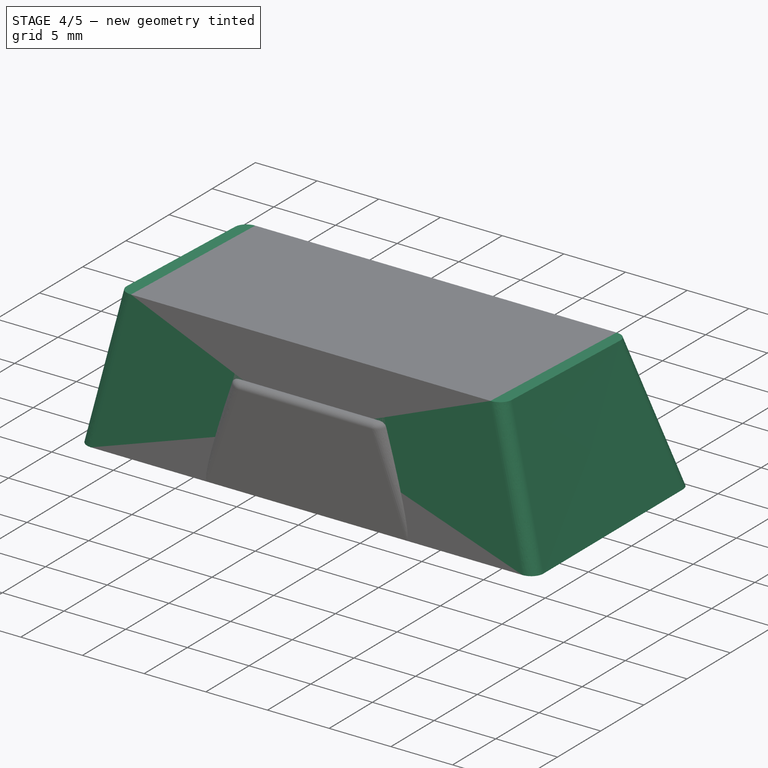
[diagram: stage 4 of 5 — iso view after this stage's code; geometry added in this stage tinted green]
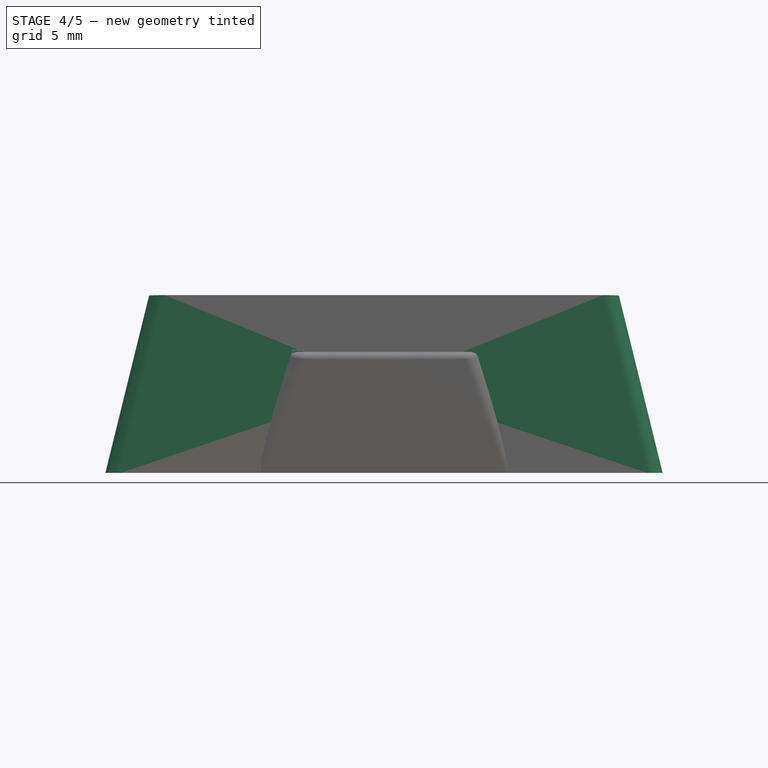
[diagram: stage 4 of 5 — front view after this stage's code; geometry added in this stage tinted green]
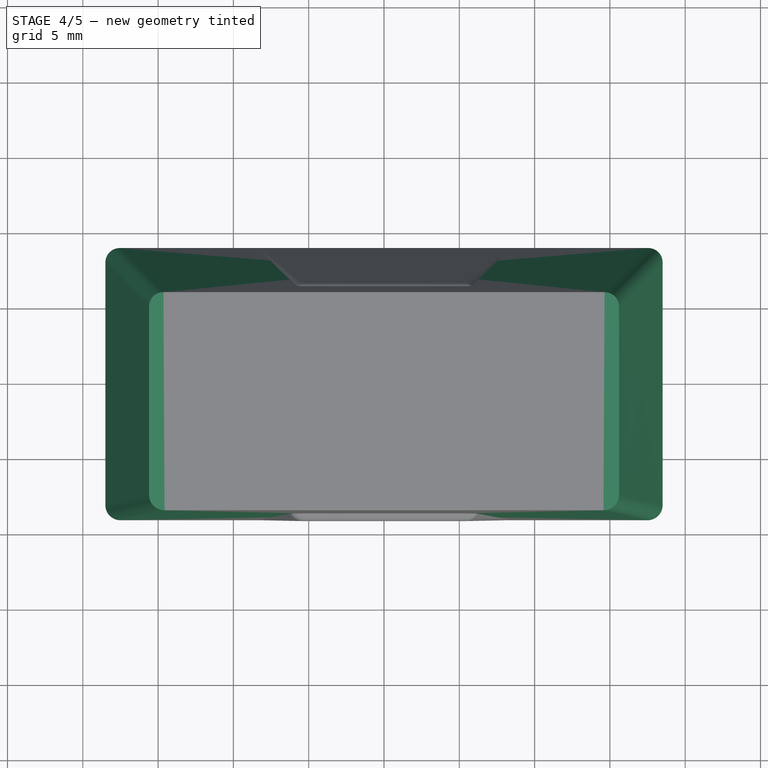
[diagram: stage 4 of 5 — top view after this stage's code; geometry added in this stage tinted green]
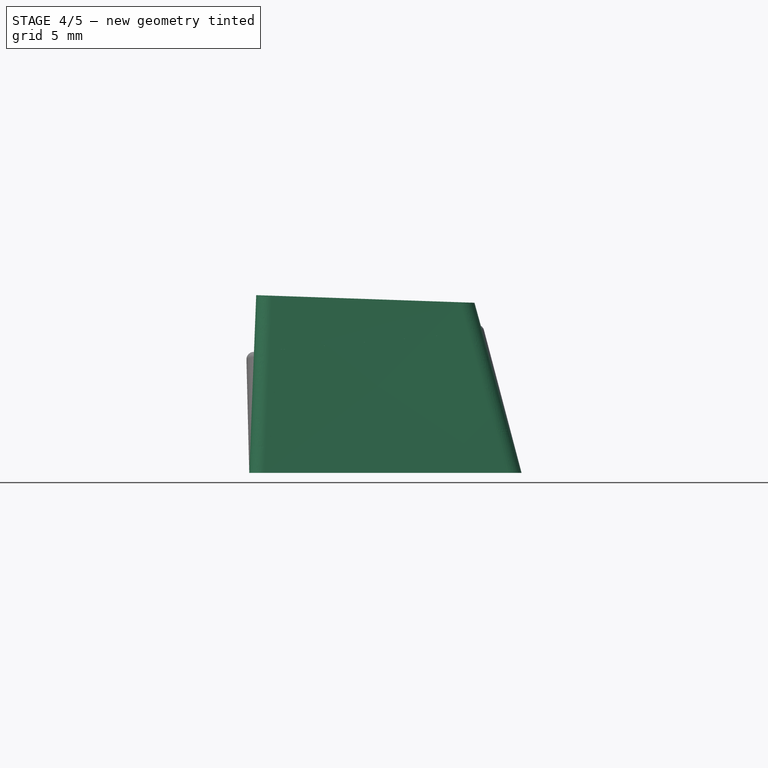
[diagram: stage 4 of 5 — right view after this stage's code; geometry added in this stage tinted green]
FEATURE [PartDesign::Body] Body  label="2.25UR2"
  Group = -> [Sketch,DatumPlane,Sketch001,AdditiveLoft,Sketch002,DatumPlane001,Sketch003,SubtractiveLoft,Sketch004,Pad,Fillet,Fillet001,Chamfer]
  Origin = -> Origin
  Tip = -> Chamfer
FEATURE [Sketcher::SketchObject] Sketch005  label="OuterBottomPlane001"
  FullyConstrained = true
  MapMode = 5
  Support = -> [XY_Plane001]
  sketch-geometry (4):
    g0: LineSegment StartX=-18.5 StartY=9.04 StartZ=0 EndX=18.5 EndY=9.04 EndZ=0
    g1: LineSegment StartX=18.5 StartY=9.04 StartZ=0 EndX=18.5 EndY=-9.04 EndZ=0
    g2: LineSegment StartX=18.5 StartY=-9.04 StartZ=0 EndX=-18.5 EndY=-9.04 EndZ=0
    g3: LineSegment StartX=-18.5 StartY=-9.04 StartZ=0 EndX=-18.5 EndY=9.04 EndZ=0
  constraints (10):
    c: Coincident(g0,g1)
    c: Coincident(g1,g2)
    c: Coincident(g2,g3)
    c: Coincident(g3,g0)
    c: Horizontal(g2)
    c: Vertical(g1)
    c: Symmetric(g0,g2,g-1)
    c: Symmetric(g0,g0,g-2)
    c: DistanceY(g1,g1) = 18.08
    c: DistanceX(g0,g0) = 37
FEATURE [PartDesign::Plane] DatumPlane002  label="Floor Plane001"
  AttachmentOffset = pos=(0,0,11.5) rot=(-1,0,0;0.034907rad)
  Length = 60.17
  MapMode = 2
  Placement = pos=(0,0,11.5) rot=(-1,0,0;0.034907rad)
  ResizeMode = 0
  Support = -> [Sketch005]
  Width = 61.8845
FEATURE [PartDesign::Plane] DatumPlane003
  AttachmentOffset = pos=(0,0,-7) rot=(0,0,1;0rad)
  Length = 60
  MapMode = 13
  Placement = pos=(-6.16667,-3.01333,7) rot=(0,1,0;3.14159rad)
  ResizeMode = 0
  Support = -> [Sketch005]
  Width = 60
FEATURE [Sketcher::SketchObject] Sketch006  label="OuterTopPlane001"
  ExternalGeometry = -> [Sketch005]
  FullyConstrained = true
  MapMode = 5
  Placement = pos=(0,0,11.5) rot=(-1,0,0;0.034907rad)
  Support = -> [DatumPlane002]
  sketch-geometry (4):
    g0: LineSegment StartX=-15.6 StartY=-8.58315 StartZ=0 EndX=15.6 EndY=-8.58315 EndZ=0
    g1: LineSegment StartX=15.6 StartY=-8.58315 StartZ=0 EndX=15.6 EndY=5.91685 EndZ=0
    g2: LineSegment StartX=15.6 StartY=5.91685 StartZ=0 EndX=-15.6 EndY=5.91685 EndZ=0
    g3: LineSegment StartX=-15.6 StartY=5.91685 StartZ=0 EndX=-15.6 EndY=-8.58315 EndZ=0
  constraints (12):
    c: Coincident(g0,g1)
    c: Coincident(g1,g2)
    c: Coincident(g2,g3)
    c: Coincident(g3,g0)
    c: Horizontal(g2)
    c: Vertical(g1)
    c: Vertical(g3)
    c: DistanceY(g3,g3) = 14.5
    c: DistanceY(g-4,g0) = 0.05
    c: Horizontal(g0)
    c: DistanceX(g-4,g0) = 2.9
    c: DistanceX(g0,g-4) = 2.9
FEATURE [PartDesign::AdditiveLoft] AdditiveLoft001
  Closed = false
  Placement = pos=(0,0,11.5) rot=(-1,0,0;0.034907rad)
  Profile = -> Sketch006
  Ruled = false
  Sections = -> [Sketch005]
FEATURE [Sketcher::SketchObject] Sketch007  label="InnerBottomPlane001"
  ExternalGeometry = -> [Sketch005]
  FullyConstrained = true
  MapMode = 5
  Placement = pos=(0,-3.98e-14,1.8e-15) rot=(1,0,0;3.14159rad)
  Support = -> [AdditiveLoft001]
  sketch-geometry (4):
    g0: LineSegment StartX=-17.3 StartY=7.84 StartZ=0 EndX=17.3 EndY=7.84 EndZ=0
    g1: LineSegment StartX=17.3 StartY=7.84 StartZ=0 EndX=17.3 EndY=-8.04 EndZ=0
    g2: LineSegment StartX=17.3 StartY=-8.04 StartZ=0 EndX=-17.3 EndY=-8.04 EndZ=0
    g3: LineSegment StartX=-17.3 StartY=-8.04 StartZ=0 EndX=-17.3 EndY=7.84 EndZ=0
  constraints (12):
    c: Coincident(g0,g1)
    c: Coincident(g1,g2)
    c: Coincident(g2,g3)
    c: Coincident(g3,g0)
    c: Horizontal(g0)
    c: Horizontal(g2)
    c: Vertical(g1)
    c: Vertical(g3)
    c: DistanceX(g-3,g0) = 1.2
    c: DistanceY(g0,g-3) = 1.2
    c: DistanceX(g1,g-4) = 1.2
    c: DistanceY(g-4,g1) = 1
FEATURE [Sketcher::SketchObject] Sketch008  label="InnerTopPlane001"
  ExternalGeometry = -> [Sketch006]
  FullyConstrained = true
  MapMode = 5
  Placement = pos=(-6.16667,-3.01333,7) rot=(0,1,0;3.14159rad)
  Support = -> [DatumPlane003]
  sketch-geometry (4):
    g0: LineSegment StartX=8.63333 StartY=7.92658 StartZ=0 EndX=-20.9667 EndY=7.92658 EndZ=0
    g1: LineSegment StartX=-20.9667 StartY=7.92658 StartZ=0 EndX=-20.9667 EndY=-4.36459 EndZ=0
    g2: LineSegment StartX=-20.9667 StartY=-4.36459 StartZ=0 EndX=8.63333 EndY=-4.36459 EndZ=0
    g3: LineSegment StartX=8.63333 StartY=-4.36459 StartZ=0 EndX=8.63333 EndY=7.92658 EndZ=0
  constraints (12):
    c: Coincident(g0,g1)
    c: Coincident(g1,g2)
    c: Coincident(g2,g3)
    c: Coincident(g3,g0)
    c: Horizontal(g0)
    c: Horizontal(g2)
    c: Vertical(g1)
    c: Vertical(g3)
    c: DistanceY(g-3,g1) = 1.2
    c: DistanceY(g0,g-4) = 1
    c: DistanceX(g0,g-4) = 0.8
    c: DistanceX(g-3,g1) = 0.8
FEATURE [PartDesign::SubtractiveLoft] SubtractiveLoft001
  BaseFeature = -> AdditiveLoft001
  Closed = false
  Placement = pos=(0,0,11.5) rot=(-1,0,0;0.034907rad)
  Profile = -> Sketch007
  Ruled = false
  Sections = -> [Sketch008]
FEATURE [Sketcher::SketchObject] Sketch009
  FullyConstrained = true
  MapMode = 5
  Placement = pos=(0,-1.58e-14,7) rot=(1,0,0;3.14159rad)
  Support = -> [SubtractiveLoft001]
  sketch-geometry (41):
    g0: Circle CenterX=-11.77 CenterY=0 CenterZ=0 NormalX=0 NormalY=0 NormalZ=1 AngleXU=0 Radius=2.85
    g1: LineSegment StartX=-12.395 StartY=-0.625 StartZ=0 EndX=-12.395 EndY=-2.025 EndZ=0
    g2: LineSegment StartX=-12.395 StartY=-2.025 StartZ=0 EndX=-11.145 EndY=-2.025 EndZ=0
    g3: LineSegment StartX=-12.395 StartY=-0.625 StartZ=0 EndX=-13.795 EndY=-0.625 EndZ=0
    g4: LineSegment StartX=-13.795 StartY=-0.625 StartZ=0 EndX=-13.795 EndY=0.625 EndZ=0
    g5: LineSegment StartX=-13.795 StartY=0.625 StartZ=0 EndX=-12.395 EndY=0.625 EndZ=0
    g6: LineSegment StartX=-12.395 StartY=0.625 StartZ=0 EndX=-12.395 EndY=2.025 EndZ=0
    g7: LineSegment StartX=-12.395 StartY=2.025 StartZ=0 EndX=-11.145 EndY=2.025 EndZ=0
    g8: LineSegment StartX=-11.145 StartY=2.025 StartZ=0 EndX=-11.145 EndY=0.625 EndZ=0
    g9: LineSegment StartX=-11.145 StartY=0.625 StartZ=0 EndX=-9.745 EndY=0.625 EndZ=0
    g10: LineSegment StartX=-9.745 StartY=0.625 StartZ=0 EndX=-9.745 EndY=-0.625 EndZ=0
    g11: LineSegment StartX=-9.745 StartY=-0.625 StartZ=0 EndX=-11.145 EndY=-0.625 EndZ=0
    g12: LineSegment StartX=-11.145 StartY=-0.625 StartZ=0 EndX=-11.145 EndY=-2.025 EndZ=0
    g13: Circle CenterX=0 CenterY=-1.2e-15 CenterZ=0 NormalX=0 NormalY=0 NormalZ=1 AngleXU=0 Radius=2.85
    g14: LineSegment StartX=-0.625 StartY=-0.625 StartZ=0 EndX=-0.625 EndY=-2.025 EndZ=0
    g15: LineSegment StartX=-0.625 StartY=-2.025 StartZ=0 EndX=0.625 EndY=-2.025 EndZ=0
    g16: LineSegment StartX=-0.625 StartY=-0.625 StartZ=0 EndX=-2.025 EndY=-0.625 EndZ=0
    g17: LineSegment StartX=-2.025 StartY=-0.625 StartZ=0 EndX=-2.025 EndY=0.625 EndZ=0
    g18: LineSegment StartX=-2.025 StartY=0.625 StartZ=0 EndX=-0.625 EndY=0.625 EndZ=0
    g19: LineSegment StartX=-0.625 StartY=0.625 StartZ=0 EndX=-0.625 EndY=2.025 EndZ=0
    g20: LineSegment StartX=-0.625 StartY=2.025 StartZ=0 EndX=0.625 EndY=2.025 EndZ=0
    g21: LineSegment StartX=0.625 StartY=2.025 StartZ=0 EndX=0.625 EndY=0.625 EndZ=0
    g22: LineSegment StartX=0.625 StartY=0.625 StartZ=0 EndX=2.025 EndY=0.625 EndZ=0
    g23: LineSegment StartX=2.025 StartY=0.625 StartZ=0 EndX=2.025 EndY=-0.625 EndZ=0
    g24: LineSegment StartX=2.025 StartY=-0.625 StartZ=0 EndX=0.625 EndY=-0.625 EndZ=0
    g25: LineSegment StartX=0.625 StartY=-0.625 StartZ=0 EndX=0.625 EndY=-2.025 EndZ=0
    g26: LineSegment StartX=-11.77 StartY=0 StartZ=0 EndX=0 EndY=-1.2e-15 EndZ=0
    g27: Circle CenterX=11.77 CenterY=-2.9e-15 CenterZ=0 NormalX=0 NormalY=0 NormalZ=1 AngleXU=0 Radius=2.85
    g28: LineSegment StartX=11.145 StartY=-0.625 StartZ=0 EndX=11.145 EndY=-2.025 EndZ=0
    g29: LineSegment StartX=11.145 StartY=-2.025 StartZ=0 EndX=12.395 EndY=-2.025 EndZ=0
    g30: LineSegment StartX=11.145 StartY=-0.625 StartZ=0 EndX=9.745 EndY=-0.625 EndZ=0
    g31: LineSegment StartX=9.745 StartY=-0.625 StartZ=0 EndX=9.745 EndY=0.625 EndZ=0
    g32: LineSegment StartX=9.745 StartY=0.625 StartZ=0 EndX=11.145 EndY=0.625 EndZ=0
    g33: LineSegment StartX=11.145 StartY=0.625 StartZ=0 EndX=11.145 EndY=2.025 EndZ=0
    g34: LineSegment StartX=11.145 StartY=2.025 StartZ=0 EndX=12.395 EndY=2.025 EndZ=0
    g35: LineSegment StartX=12.395 StartY=2.025 StartZ=0 EndX=12.395 EndY=0.625 EndZ=0
    g36: LineSegment StartX=12.395 StartY=0.625 StartZ=0 EndX=13.795 EndY=0.625 EndZ=0
    g37: LineSegment StartX=13.795 StartY=0.625 StartZ=0 EndX=13.795 EndY=-0.625 EndZ=0
    g38: LineSegment StartX=13.795 StartY=-0.625 StartZ=0 EndX=12.395 EndY=-0.625 EndZ=0
    g39: LineSegment StartX=12.395 StartY=-0.625 StartZ=0 EndX=12.395 EndY=-2.025 EndZ=0
    g40: LineSegment StartX=0 StartY=-1.2e-15 StartZ=0 EndX=11.77 EndY=-2.9e-15 EndZ=0
  constraints (121):
    c: PointOnObject(g0,g-1)
    c: Vertical(g1)
    c: Coincident(g2,g1)
    c: Horizontal(g2)
    c: Coincident(g3,g1)
    c: Horizontal(g3)
    c: Coincident(g4,g3)
    c: Vertical(g4)
    c: Coincident(g5,g4)
    c: Horizontal(g5)
    c: Coincident(g6,g5)
    c: Vertical(g6)
    c: Coincident(g7,g6)
    c: Horizontal(g7)
    c: Coincident(g8,g7)
    c: Vertical(g8)
    c: Coincident(g9,g8)
    c: Horizontal(g9)
    c: Coincident(g10,g9)
    c: Vertical(g10)
    c: Coincident(g11,g10)
    c: Horizontal(g11)
    c: Coincident(g12,g11)
    c: Coincident(g12,g2)
    c: Vertical(g12)
    c: Horizontal(g5,g8)
    c: Horizontal(g11,g1)
    c: Vertical(g5,g1)
    c: Vertical(g8,g11)
    c: Equal(g7,g4)
    c: Equal(g1,g6)
    c: Equal(g6,g11)
    c: Equal(g3,g11)
    c: DistanceY(g1,g6) = 4.05
    c: DistanceX(g5,g8) = 1.25
    c: DistanceX(g5,g0) = 0.625
    c: DistanceY(g0,g5) = 0.625
    c: Diameter(g0) = 5.7
    c: Vertical(g14)
    c: Coincident(g15,g14)
    c: Horizontal(g15)
    c: Coincident(g16,g14)
    c: Horizontal(g16)
    c: Coincident(g17,g16)
    c: Vertical(g17)
    c: Coincident(g18,g17)
    c: Horizontal(g18)
    c: Coincident(g19,g18)
    c: Vertical(g19)
    c: Coincident(g20,g19)
    c: Horizontal(g20)
    c: Coincident(g21,g20)
    c: Vertical(g21)
    c: Coincident(g22,g21)
    c: Horizontal(g22)
    c: Coincident(g23,g22)
    c: Vertical(g23)
    c: Coincident(g24,g23)
    c: Horizontal(g24)
    c: Coincident(g25,g24)
    c: Coincident(g25,g15)
    c: Vertical(g25)
    c: Horizontal(g18,g21)
    c: Horizontal(g24,g14)
    c: Vertical(g18,g14)
    c: Vertical(g21,g24)
    c: Equal(g20,g17)
    c: Equal(g14,g19)
    c: Equal(g19,g24)
    c: Equal(g16,g24)
    c: DistanceY(g14,g19) = 4.05
    c: DistanceX(g18,g21) = 1.25
    c: DistanceX(g18,g13) = 0.625
    c: DistanceY(g13,g18) = 0.625
    c: Diameter(g13) = 5.7
    c: Coincident(g0,g26)
    c: Coincident(g13,g26)
    c: Distance(g26) = 11.77
    c: Angle(g26) = 0
    c: Vertical(g28)
    c: Coincident(g29,g28)
    c: Horizontal(g29)
    c: Coincident(g30,g28)
    c: Horizontal(g30)
    c: Coincident(g31,g30)
    c: Vertical(g31)
    c: Coincident(g32,g31)
    c: Horizontal(g32)
    c: Coincident(g33,g32)
    c: Vertical(g33)
    c: Coincident(g34,g33)
    c: Horizontal(g34)
    c: Coincident(g35,g34)
    c: Vertical(g35)
    c: Coincident(g36,g35)
    c: Horizontal(g36)
    c: Coincident(g37,g36)
    c: Vertical(g37)
    c: Coincident(g38,g37)
    c: Horizontal(g38)
    c: Coincident(g39,g38)
    c: Coincident(g39,g29)
    c: Vertical(g39)
    c: Horizontal(g32,g35)
    c: Horizontal(g38,g28)
    c: Vertical(g32,g28)
    c: Vertical(g35,g38)
    c: Equal(g34,g31)
    c: Equal(g28,g33)
    c: Equal(g33,g38)
    c: Equal(g30,g38)
    c: DistanceY(g28,g33) = 4.05
    c: DistanceX(g32,g35) = 1.25
    c: DistanceX(g32,g27) = 0.625
    c: DistanceY(g27,g32) = 0.625
    c: Diameter(g27) = 5.7
    c: Coincident(g13,g40)
    c: Coincident(g27,g40)
    c: Equal(g26,g40)
    c: Parallel(g40,g26)
    c: Vertical(g13,g-1)
FEATURE [PartDesign::Pad] Pad001
  BaseFeature = -> SubtractiveLoft001
  Direction = (0,-3.5e-15,-1)
  Length = 10
  Length2 = 10
  Offset = -1.2
  Placement = pos=(0,0,11.5) rot=(-1,0,0;0.034907rad)
  Profile = -> Sketch009
  ReferenceAxis = -> Sketch009 [N_Axis]
  Type = 3
  UpToFace = -> SubtractiveLoft001 [Face6]
FEATURE [PartDesign::Fillet] Fillet002
  Base = -> Pad001 [Edge5,Edge8,Edge7,Edge10]
  BaseFeature = -> Pad001
  Placement = pos=(0,0,11.5) rot=(-1,0,0;0.034907rad)
  Radius = 1
  SupportTransform = false
  UseAllEdges = false
FEATURE [PartDesign::Fillet] Fillet004
  Base = -> Pad002 [Edge5,Edge8,Edge7,Edge10]
  BaseFeature = -> Pad002
  Placement = pos=(0,0,9) rot=(1,0,0;0.139626rad)
  Radius = 1
  SupportTransform = false
  UseAllEdges = false
FEATURE [PartDesign::Fillet] Fillet005
  Base = -> Fillet004 [Face1]
  BaseFeature = -> Fillet004
  Placement = pos=(0,0,9) rot=(1,0,0;0.139626rad)
  Radius = 0.5
  SupportTransform = false
  UseAllEdges = false
FEATURE [PartDesign::Chamfer] Chamfer002
  Angle = 45
  Base = -> Fillet005 [Edge54]
  BaseFeature = -> Fillet005
  ChamferType = 0
  FlipDirection = false
  Placement = pos=(0,0,9) rot=(1,0,0;0.139626rad)
  Size = 1
  Size2 = 1
  SupportTransform = false
  UseAllEdges = false
FEATURE [PartDesign::Fillet] Fillet006
  Base = -> Chamfer002 [Edge53]
  BaseFeature = -> Chamfer002
  Placement = pos=(0,0,9) rot=(1,0,0;0.139626rad)
  Radius = 1
  SupportTransform = false
  UseAllEdges = false
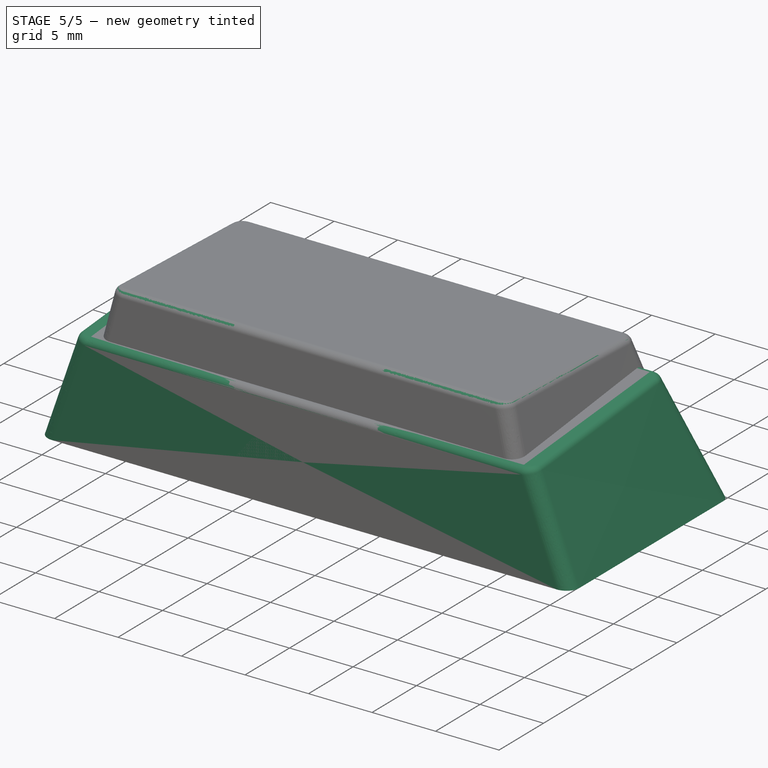
[diagram: stage 5 of 5 — iso view after this stage's code; geometry added in this stage tinted green]
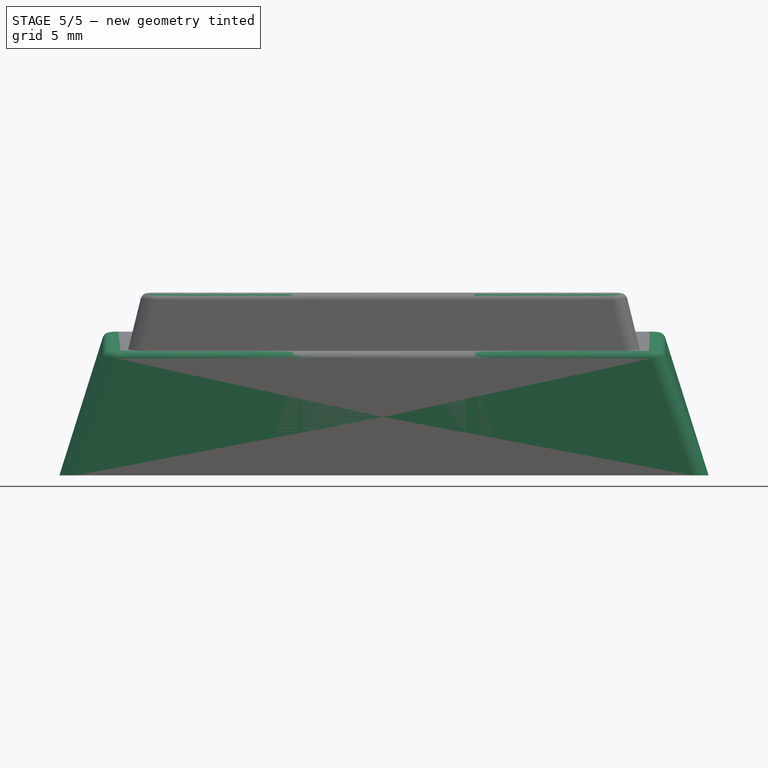
[diagram: stage 5 of 5 — front view after this stage's code; geometry added in this stage tinted green]
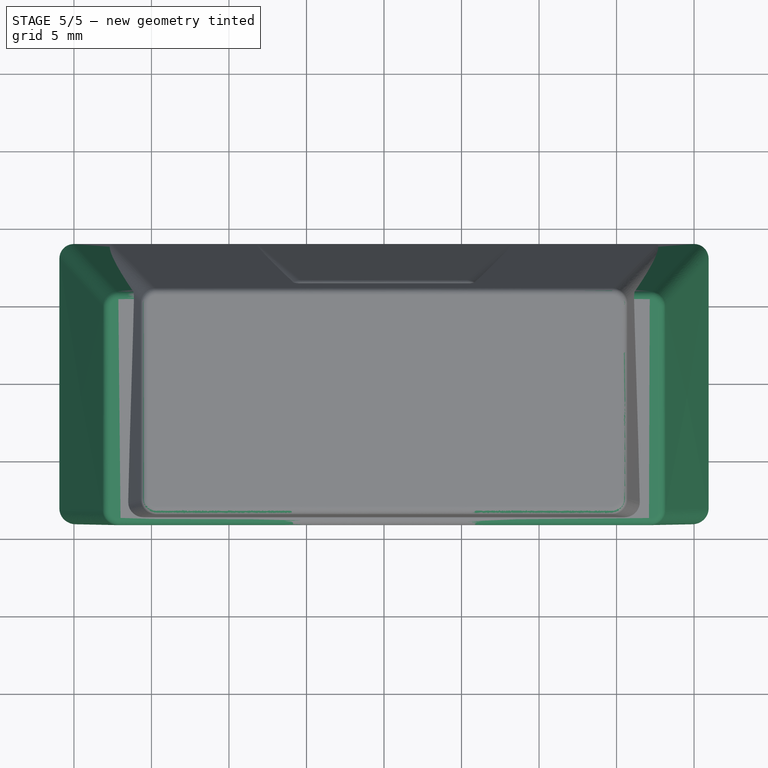
[diagram: stage 5 of 5 — top view after this stage's code; geometry added in this stage tinted green]
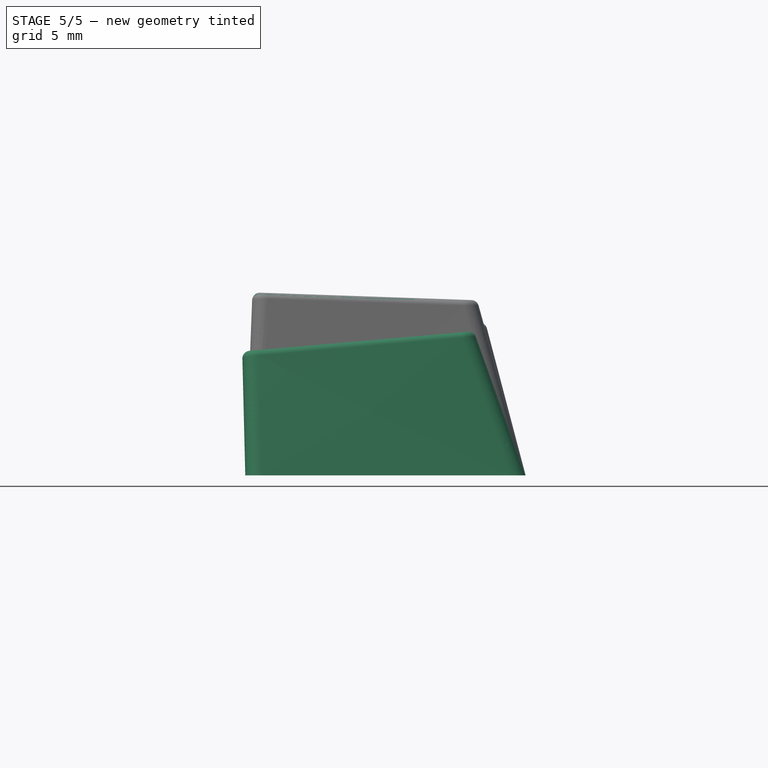
[diagram: stage 5 of 5 — right view after this stage's code; geometry added in this stage tinted green]
FEATURE [Sketcher::SketchObject] Sketch  label="OuterBottomPlane"
  FullyConstrained = true
  MapMode = 5
  Support = -> [XY_Plane]
  sketch-geometry (4):
    g0: LineSegment StartX=-20.935 StartY=9.04 StartZ=0 EndX=20.935 EndY=9.04 EndZ=0
    g1: LineSegment StartX=20.935 StartY=9.04 StartZ=0 EndX=20.935 EndY=-9.04 EndZ=0
    g2: LineSegment StartX=20.935 StartY=-9.04 StartZ=0 EndX=-20.935 EndY=-9.04 EndZ=0
    g3: LineSegment StartX=-20.935 StartY=-9.04 StartZ=0 EndX=-20.935 EndY=9.04 EndZ=0
  constraints (10):
    c: Coincident(g0,g1)
    c: Coincident(g1,g2)
    c: Coincident(g2,g3)
    c: Coincident(g3,g0)
    c: Horizontal(g2)
    c: Vertical(g1)
    c: Symmetric(g0,g2,g-1)
    c: Symmetric(g0,g0,g-2)
    c: DistanceY(g1,g1) = 18.08
    c: DistanceX(g0,g0) = 41.87
FEATURE [PartDesign::Plane] DatumPlane  label="Floor Plane"
  AttachmentOffset = pos=(0,0,8.8) rot=(1,0,0;0.087266rad)
  Length = 60.4084
  MapMode = 2
  Placement = pos=(0,0,8.8) rot=(1,0,0;0.087266rad)
  ResizeMode = 0
  Support = -> [Sketch]
  Width = 64.5759
FEATURE [Sketcher::SketchObject] Sketch001  label="OuterTopPlane"
  ExternalGeometry = -> [Sketch]
  FullyConstrained = true
  MapMode = 5
  Placement = pos=(0,0,8.8) rot=(1,0,0;0.087266rad)
  Support = -> [DatumPlane]
  sketch-geometry (4):
    g0: LineSegment StartX=-18.035 StartY=-9.27257 StartZ=0 EndX=18.035 EndY=-9.27257 EndZ=0
    g1: LineSegment StartX=18.035 StartY=-9.27257 StartZ=0 EndX=18.035 EndY=5.72743 EndZ=0
    g2: LineSegment StartX=18.035 StartY=5.72743 StartZ=0 EndX=-18.035 EndY=5.72743 EndZ=0
    g3: LineSegment StartX=-18.035 StartY=5.72743 StartZ=0 EndX=-18.035 EndY=-9.27257 EndZ=0
  constraints (12):
    c: Coincident(g0,g1)
    c: Coincident(g1,g2)
    c: Coincident(g2,g3)
    c: Coincident(g3,g0)
    c: Horizontal(g2)
    c: Vertical(g1)
    c: Vertical(g3)
    c: DistanceY(g3,g3) = 15
    c: DistanceY(g-4,g0) = 0.5
    c: Horizontal(g0)
    c: DistanceX(g-4,g0) = 2.9
    c: DistanceX(g0,g-4) = 2.9
FEATURE [PartDesign::AdditiveLoft] AdditiveLoft
  Closed = false
  Placement = pos=(0,0,8.8) rot=(1,0,0;0.087266rad)
  Profile = -> Sketch001
  Ruled = false
  Sections = -> [Sketch]
FEATURE [Sketcher::SketchObject] Sketch002  label="InnerBottomPlane"
  ExternalGeometry = -> [Sketch]
  FullyConstrained = true
  MapMode = 5
  Placement = pos=(0,1.47e-14,-1.8e-15) rot=(1,0,0;3.14159rad)
  Support = -> [AdditiveLoft]
  sketch-geometry (4):
    g0: LineSegment StartX=-19.735 StartY=7.84 StartZ=0 EndX=19.735 EndY=7.84 EndZ=0
    g1: LineSegment StartX=19.735 StartY=7.84 StartZ=0 EndX=19.735 EndY=-8.04 EndZ=0
    g2: LineSegment StartX=19.735 StartY=-8.04 StartZ=0 EndX=-19.735 EndY=-8.04 EndZ=0
    g3: LineSegment StartX=-19.735 StartY=-8.04 StartZ=0 EndX=-19.735 EndY=7.84 EndZ=0
  constraints (12):
    c: Coincident(g0,g1)
    c: Coincident(g1,g2)
    c: Coincident(g2,g3)
    c: Coincident(g3,g0)
    c: Horizontal(g0)
    c: Horizontal(g2)
    c: Vertical(g1)
    c: Vertical(g3)
    c: DistanceX(g-3,g0) = 1.2
    c: DistanceY(g0,g-3) = 1.2
    c: DistanceX(g1,g-4) = 1.2
    c: DistanceY(g-4,g1) = 1
FEATURE [PartDesign::Plane] DatumPlane001
  AttachmentOffset = pos=(0,0,-7) rot=(0,0,1;0rad)
  Length = 60
  MapMode = 13
  Placement = pos=(-6.97833,-3.01333,7) rot=(0,1,0;3.14159rad)
  ResizeMode = 0
  Support = -> [Sketch]
  Width = 60
FEATURE [Sketcher::SketchObject] Sketch003  label="InnerTopPlane"
  ExternalGeometry = -> [Sketch001]
  FullyConstrained = true
  MapMode = 5
  Placement = pos=(-6.97833,-3.01333,7) rot=(0,1,0;3.14159rad)
  Support = -> [DatumPlane001]
  sketch-geometry (4):
    g0: LineSegment StartX=9.85667 StartY=7.71897 StartZ=0 EndX=-23.8133 EndY=7.71897 EndZ=0
    g1: LineSegment StartX=-23.8133 StartY=7.71897 StartZ=0 EndX=-23.8133 EndY=-5.02395 EndZ=0
    g2: LineSegment StartX=-23.8133 StartY=-5.02395 StartZ=0 EndX=9.85667 EndY=-5.02395 EndZ=0
    g3: LineSegment StartX=9.85667 StartY=-5.02395 StartZ=0 EndX=9.85667 EndY=7.71897 EndZ=0
  constraints (12):
    c: Coincident(g0,g1)
    c: Coincident(g1,g2)
    c: Coincident(g2,g3)
    c: Coincident(g3,g0)
    c: Horizontal(g0)
    c: Horizontal(g2)
    c: Vertical(g1)
    c: Vertical(g3)
    c: DistanceY(g-3,g1) = 1.2
    c: DistanceY(g0,g-4) = 1
    c: DistanceX(g0,g-4) = 1.2
    c: DistanceX(g-3,g1) = 1.2
FEATURE [PartDesign::SubtractiveLoft] SubtractiveLoft
  BaseFeature = -> AdditiveLoft
  Closed = false
  Placement = pos=(0,0,8.8) rot=(1,0,0;0.087266rad)
  Profile = -> Sketch002
  Ruled = false
  Sections = -> [Sketch003]
FEATURE [Sketcher::SketchObject] Sketch004
  FullyConstrained = true
  MapMode = 5
  Placement = pos=(0,3e-15,7) rot=(1,0,0;3.14159rad)
  Support = -> [SubtractiveLoft]
  sketch-geometry (41):
    g0: Circle CenterX=-11.77 CenterY=0 CenterZ=0 NormalX=0 NormalY=0 NormalZ=1 AngleXU=0 Radius=2.85
    g1: LineSegment StartX=-12.395 StartY=-0.625 StartZ=0 EndX=-12.395 EndY=-2.025 EndZ=0
    g2: LineSegment StartX=-12.395 StartY=-2.025 StartZ=0 EndX=-11.145 EndY=-2.025 EndZ=0
    g3: LineSegment StartX=-12.395 StartY=-0.625 StartZ=0 EndX=-13.795 EndY=-0.625 EndZ=0
    g4: LineSegment StartX=-13.795 StartY=-0.625 StartZ=0 EndX=-13.795 EndY=0.625 EndZ=0
    g5: LineSegment StartX=-13.795 StartY=0.625 StartZ=0 EndX=-12.395 EndY=0.625 EndZ=0
    g6: LineSegment StartX=-12.395 StartY=0.625 StartZ=0 EndX=-12.395 EndY=2.025 EndZ=0
    g7: LineSegment StartX=-12.395 StartY=2.025 StartZ=0 EndX=-11.145 EndY=2.025 EndZ=0
    g8: LineSegment StartX=-11.145 StartY=2.025 StartZ=0 EndX=-11.145 EndY=0.625 EndZ=0
    g9: LineSegment StartX=-11.145 StartY=0.625 StartZ=0 EndX=-9.745 EndY=0.625 EndZ=0
    g10: LineSegment StartX=-9.745 StartY=0.625 StartZ=0 EndX=-9.745 EndY=-0.625 EndZ=0
    g11: LineSegment StartX=-9.745 StartY=-0.625 StartZ=0 EndX=-11.145 EndY=-0.625 EndZ=0
    g12: LineSegment StartX=-11.145 StartY=-0.625 StartZ=0 EndX=-11.145 EndY=-2.025 EndZ=0
    g13: Circle CenterX=0 CenterY=-1.2e-15 CenterZ=0 NormalX=0 NormalY=0 NormalZ=1 AngleXU=0 Radius=2.85
    g14: LineSegment StartX=-0.625 StartY=-0.625 StartZ=0 EndX=-0.625 EndY=-2.025 EndZ=0
    g15: LineSegment StartX=-0.625 StartY=-2.025 StartZ=0 EndX=0.625 EndY=-2.025 EndZ=0
    g16: LineSegment StartX=-0.625 StartY=-0.625 StartZ=0 EndX=-2.025 EndY=-0.625 EndZ=0
    g17: LineSegment StartX=-2.025 StartY=-0.625 StartZ=0 EndX=-2.025 EndY=0.625 EndZ=0
    g18: LineSegment StartX=-2.025 StartY=0.625 StartZ=0 EndX=-0.625 EndY=0.625 EndZ=0
    g19: LineSegment StartX=-0.625 StartY=0.625 StartZ=0 EndX=-0.625 EndY=2.025 EndZ=0
    g20: LineSegment StartX=-0.625 StartY=2.025 StartZ=0 EndX=0.625 EndY=2.025 EndZ=0
    g21: LineSegment StartX=0.625 StartY=2.025 StartZ=0 EndX=0.625 EndY=0.625 EndZ=0
    g22: LineSegment StartX=0.625 StartY=0.625 StartZ=0 EndX=2.025 EndY=0.625 EndZ=0
    g23: LineSegment StartX=2.025 StartY=0.625 StartZ=0 EndX=2.025 EndY=-0.625 EndZ=0
    g24: LineSegment StartX=2.025 StartY=-0.625 StartZ=0 EndX=0.625 EndY=-0.625 EndZ=0
    g25: LineSegment StartX=0.625 StartY=-0.625 StartZ=0 EndX=0.625 EndY=-2.025 EndZ=0
    g26: LineSegment StartX=-11.77 StartY=0 StartZ=0 EndX=0 EndY=-1.2e-15 EndZ=0
    g27: Circle CenterX=11.77 CenterY=-2.9e-15 CenterZ=0 NormalX=0 NormalY=0 NormalZ=1 AngleXU=0 Radius=2.85
    g28: LineSegment StartX=11.145 StartY=-0.625 StartZ=0 EndX=11.145 EndY=-2.025 EndZ=0
    g29: LineSegment StartX=11.145 StartY=-2.025 StartZ=0 EndX=12.395 EndY=-2.025 EndZ=0
    g30: LineSegment StartX=11.145 StartY=-0.625 StartZ=0 EndX=9.745 EndY=-0.625 EndZ=0
    g31: LineSegment StartX=9.745 StartY=-0.625 StartZ=0 EndX=9.745 EndY=0.625 EndZ=0
    g32: LineSegment StartX=9.745 StartY=0.625 StartZ=0 EndX=11.145 EndY=0.625 EndZ=0
    g33: LineSegment StartX=11.145 StartY=0.625 StartZ=0 EndX=11.145 EndY=2.025 EndZ=0
    g34: LineSegment StartX=11.145 StartY=2.025 StartZ=0 EndX=12.395 EndY=2.025 EndZ=0
    g35: LineSegment StartX=12.395 StartY=2.025 StartZ=0 EndX=12.395 EndY=0.625 EndZ=0
    g36: LineSegment StartX=12.395 StartY=0.625 StartZ=0 EndX=13.795 EndY=0.625 EndZ=0
    g37: LineSegment StartX=13.795 StartY=0.625 StartZ=0 EndX=13.795 EndY=-0.625 EndZ=0
    g38: LineSegment StartX=13.795 StartY=-0.625 StartZ=0 EndX=12.395 EndY=-0.625 EndZ=0
    g39: LineSegment StartX=12.395 StartY=-0.625 StartZ=0 EndX=12.395 EndY=-2.025 EndZ=0
    g40: LineSegment StartX=0 StartY=-1.2e-15 StartZ=0 EndX=11.77 EndY=-2.9e-15 EndZ=0
  constraints (121):
    c: PointOnObject(g0,g-1)
    c: Vertical(g1)
    c: Coincident(g2,g1)
    c: Horizontal(g2)
    c: Coincident(g3,g1)
    c: Horizontal(g3)
    c: Coincident(g4,g3)
    c: Vertical(g4)
    c: Coincident(g5,g4)
    c: Horizontal(g5)
    c: Coincident(g6,g5)
    c: Vertical(g6)
    c: Coincident(g7,g6)
    c: Horizontal(g7)
    c: Coincident(g8,g7)
    c: Vertical(g8)
    c: Coincident(g9,g8)
    c: Horizontal(g9)
    c: Coincident(g10,g9)
    c: Vertical(g10)
    c: Coincident(g11,g10)
    c: Horizontal(g11)
    c: Coincident(g12,g11)
    c: Coincident(g12,g2)
    c: Vertical(g12)
    c: Horizontal(g5,g8)
    c: Horizontal(g11,g1)
    c: Vertical(g5,g1)
    c: Vertical(g8,g11)
    c: Equal(g7,g4)
    c: Equal(g1,g6)
    c: Equal(g6,g11)
    c: Equal(g3,g11)
    c: DistanceY(g1,g6) = 4.05
    c: DistanceX(g5,g8) = 1.25
    c: DistanceX(g5,g0) = 0.625
    c: DistanceY(g0,g5) = 0.625
    c: Diameter(g0) = 5.7
    c: Vertical(g14)
    c: Coincident(g15,g14)
    c: Horizontal(g15)
    c: Coincident(g16,g14)
    c: Horizontal(g16)
    c: Coincident(g17,g16)
    c: Vertical(g17)
    c: Coincident(g18,g17)
    c: Horizontal(g18)
    c: Coincident(g19,g18)
    c: Vertical(g19)
    c: Coincident(g20,g19)
    c: Horizontal(g20)
    c: Coincident(g21,g20)
    c: Vertical(g21)
    c: Coincident(g22,g21)
    c: Horizontal(g22)
    c: Coincident(g23,g22)
    c: Vertical(g23)
    c: Coincident(g24,g23)
    c: Horizontal(g24)
    c: Coincident(g25,g24)
    c: Coincident(g25,g15)
    c: Vertical(g25)
    c: Horizontal(g18,g21)
    c: Horizontal(g24,g14)
    c: Vertical(g18,g14)
    c: Vertical(g21,g24)
    c: Equal(g20,g17)
    c: Equal(g14,g19)
    c: Equal(g19,g24)
    c: Equal(g16,g24)
    c: DistanceY(g14,g19) = 4.05
    c: DistanceX(g18,g21) = 1.25
    c: DistanceX(g18,g13) = 0.625
    c: DistanceY(g13,g18) = 0.625
    c: Diameter(g13) = 5.7
    c: Coincident(g0,g26)
    c: Coincident(g13,g26)
    c: Distance(g26) = 11.77
    c: Angle(g26) = 0
    c: Vertical(g28)
    c: Coincident(g29,g28)
    c: Horizontal(g29)
    c: Coincident(g30,g28)
    c: Horizontal(g30)
    c: Coincident(g31,g30)
    c: Vertical(g31)
    c: Coincident(g32,g31)
    c: Horizontal(g32)
    c: Coincident(g33,g32)
    c: Vertical(g33)
    c: Coincident(g34,g33)
    c: Horizontal(g34)
    c: Coincident(g35,g34)
    c: Vertical(g35)
    c: Coincident(g36,g35)
    c: Horizontal(g36)
    c: Coincident(g37,g36)
    c: Vertical(g37)
    c: Coincident(g38,g37)
    c: Horizontal(g38)
    c: Coincident(g39,g38)
    c: Coincident(g39,g29)
    c: Vertical(g39)
    c: Horizontal(g32,g35)
    c: Horizontal(g38,g28)
    c: Vertical(g32,g28)
    c: Vertical(g35,g38)
    c: Equal(g34,g31)
    c: Equal(g28,g33)
    c: Equal(g33,g38)
    c: Equal(g30,g38)
    c: DistanceY(g28,g33) = 4.05
    c: DistanceX(g32,g35) = 1.25
    c: DistanceX(g32,g27) = 0.625
    c: DistanceY(g27,g32) = 0.625
    c: Diameter(g27) = 5.7
    c: Coincident(g13,g40)
    c: Coincident(g27,g40)
    c: Equal(g26,g40)
    c: Parallel(g40,g26)
    c: Vertical(g13,g-1)
FEATURE [PartDesign::Pad] Pad
  BaseFeature = -> SubtractiveLoft
  Direction = (0,1.7e-15,-1)
  Length = 10
  Length2 = 10
  Offset = -1.2
  Placement = pos=(0,0,8.8) rot=(1,0,0;0.087266rad)
  Profile = -> Sketch004
  ReferenceAxis = -> Sketch004 [N_Axis]
  Type = 3
  UpToFace = -> SubtractiveLoft [Face6]
FEATURE [PartDesign::Fillet] Fillet
  Base = -> Pad [Edge5,Edge8,Edge7,Edge10]
  BaseFeature = -> Pad
  Placement = pos=(0,0,8.8) rot=(1,0,0;0.087266rad)
  Radius = 1
  SupportTransform = false
  UseAllEdges = false
FEATURE [PartDesign::Fillet] Fillet001
  Base = -> Fillet [Face1]
  BaseFeature = -> Fillet
  Placement = pos=(0,0,8.8) rot=(1,0,0;0.087266rad)
  Radius = 0.5
  SupportTransform = false
  UseAllEdges = false
FEATURE [PartDesign::Chamfer] Chamfer
  Angle = 45
  Base = -> Fillet001 [Edge53,Edge54,Edge55]
  BaseFeature = -> Fillet001
  ChamferType = 0
  FlipDirection = false
  Placement = pos=(0,0,8.8) rot=(1,0,0;0.087266rad)
  Size = 1
  Size2 = 1
  SupportTransform = false
  UseAllEdges = false
FEATURE [PartDesign::Fillet] Fillet003
  Base = -> Fillet002 [Face1]
  BaseFeature = -> Fillet002
  Placement = pos=(0,0,11.5) rot=(-1,0,0;0.034907rad)
  Radius = 0.5
  SupportTransform = false
  UseAllEdges = false
FEATURE [PartDesign::Chamfer] Chamfer001
  Angle = 45
  Base = -> Fillet003 [Edge54]
  BaseFeature = -> Fillet003
  ChamferType = 0
  FlipDirection = false
  Placement = pos=(0,0,11.5) rot=(-1,0,0;0.034907rad)
  Size = 1
  Size2 = 1
  SupportTransform = false
  UseAllEdges = false
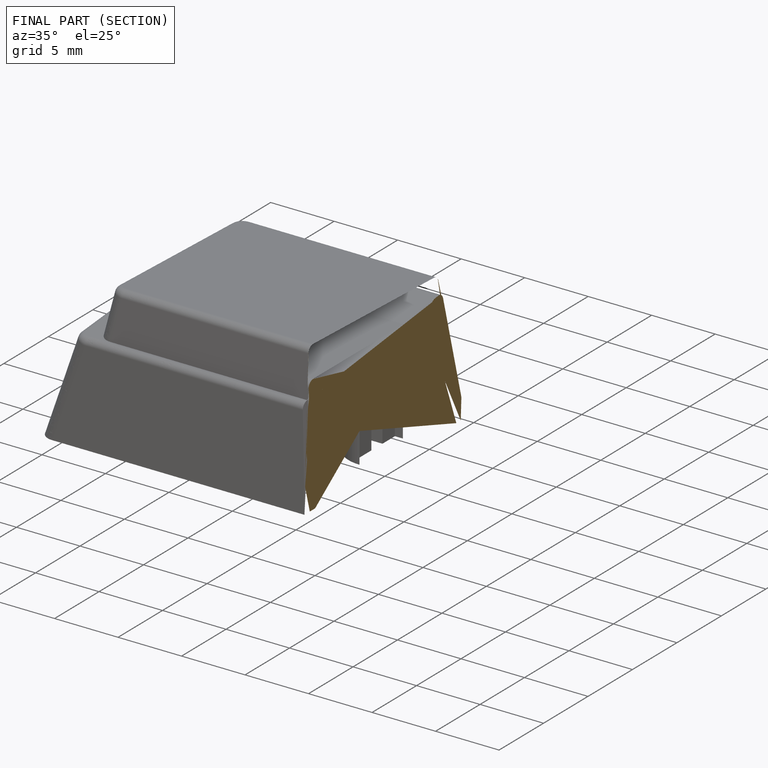
[diagram: finished part — half-section view (interior)]
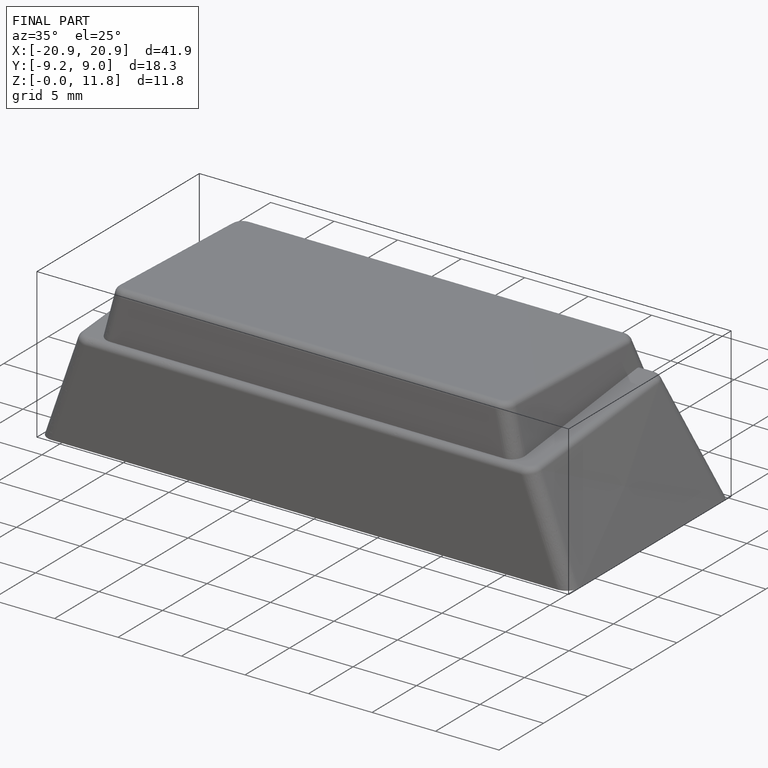
[diagram: finished part — iso view with bounding-box wireframe]
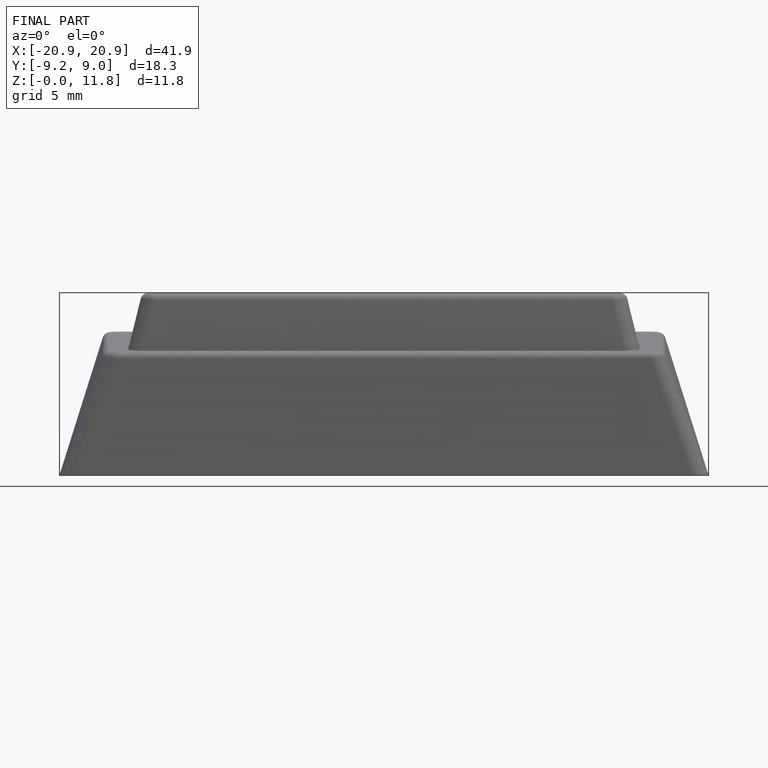
[diagram: finished part — front view with bounding-box wireframe]
